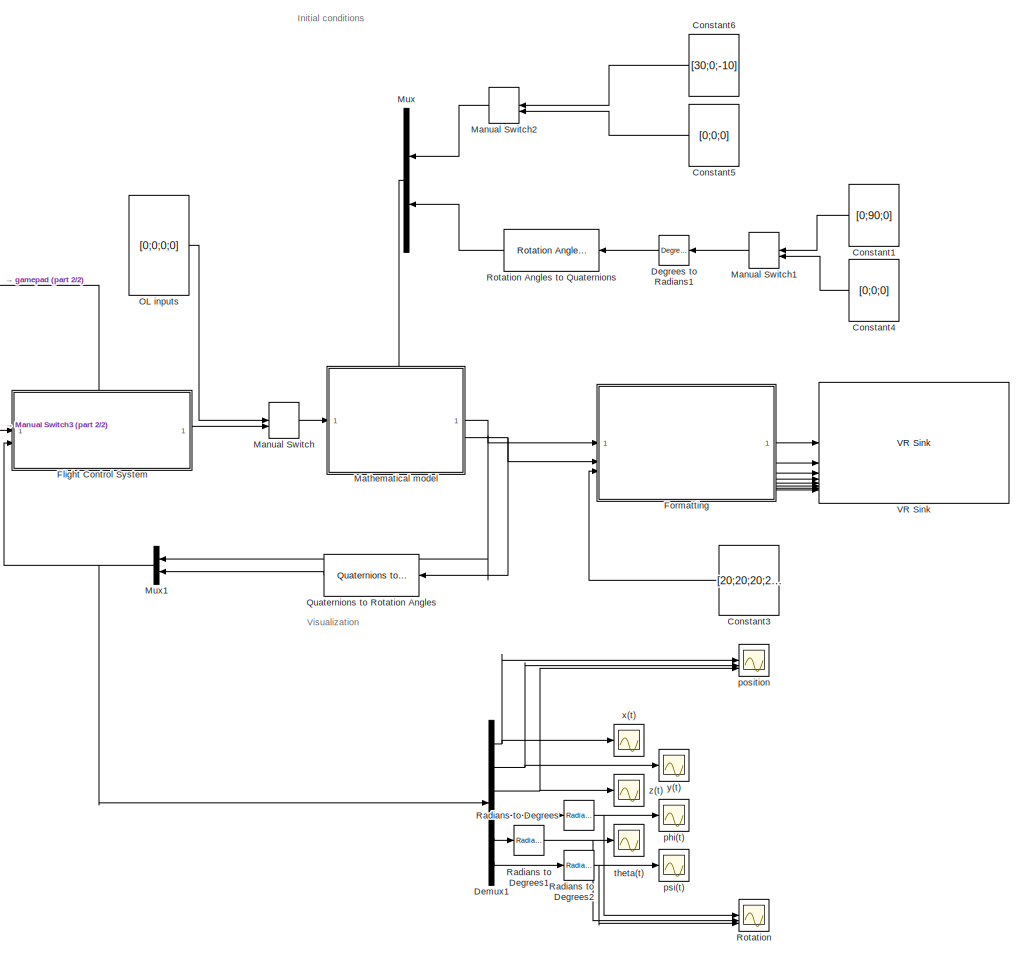
[diagram: root canvas - part 1/2, middle right region]
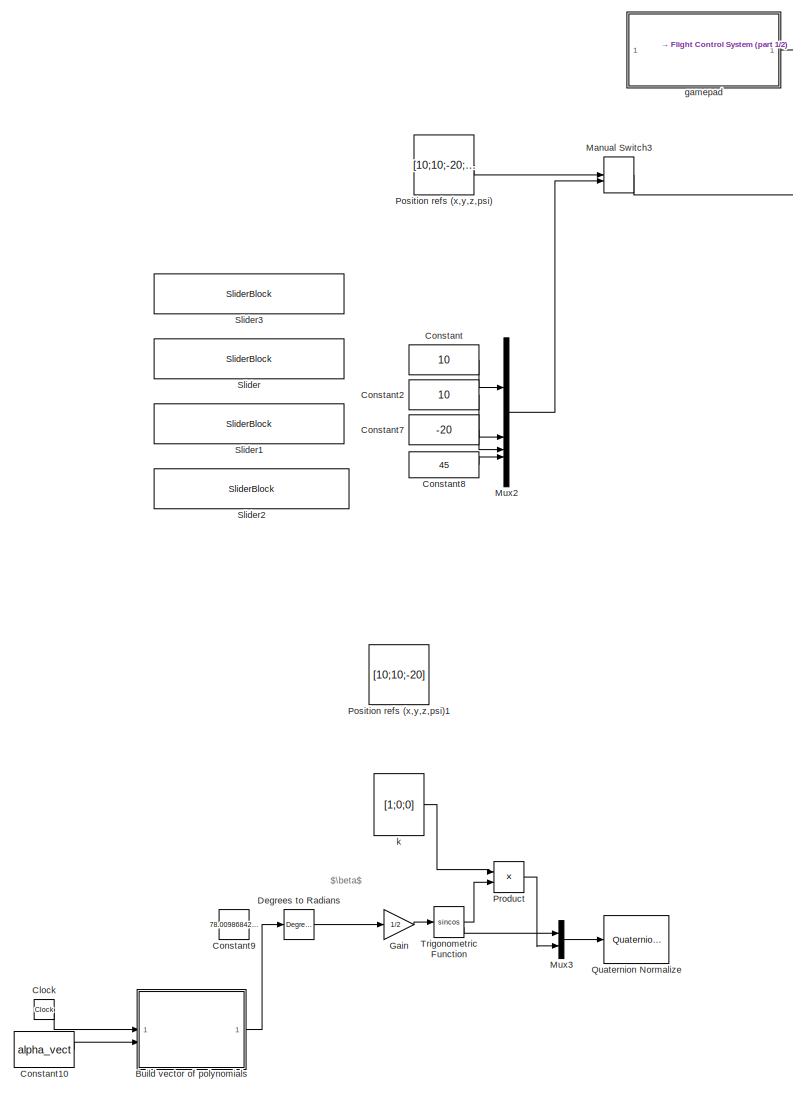
[diagram: root canvas - part 2/2, left side, full height]
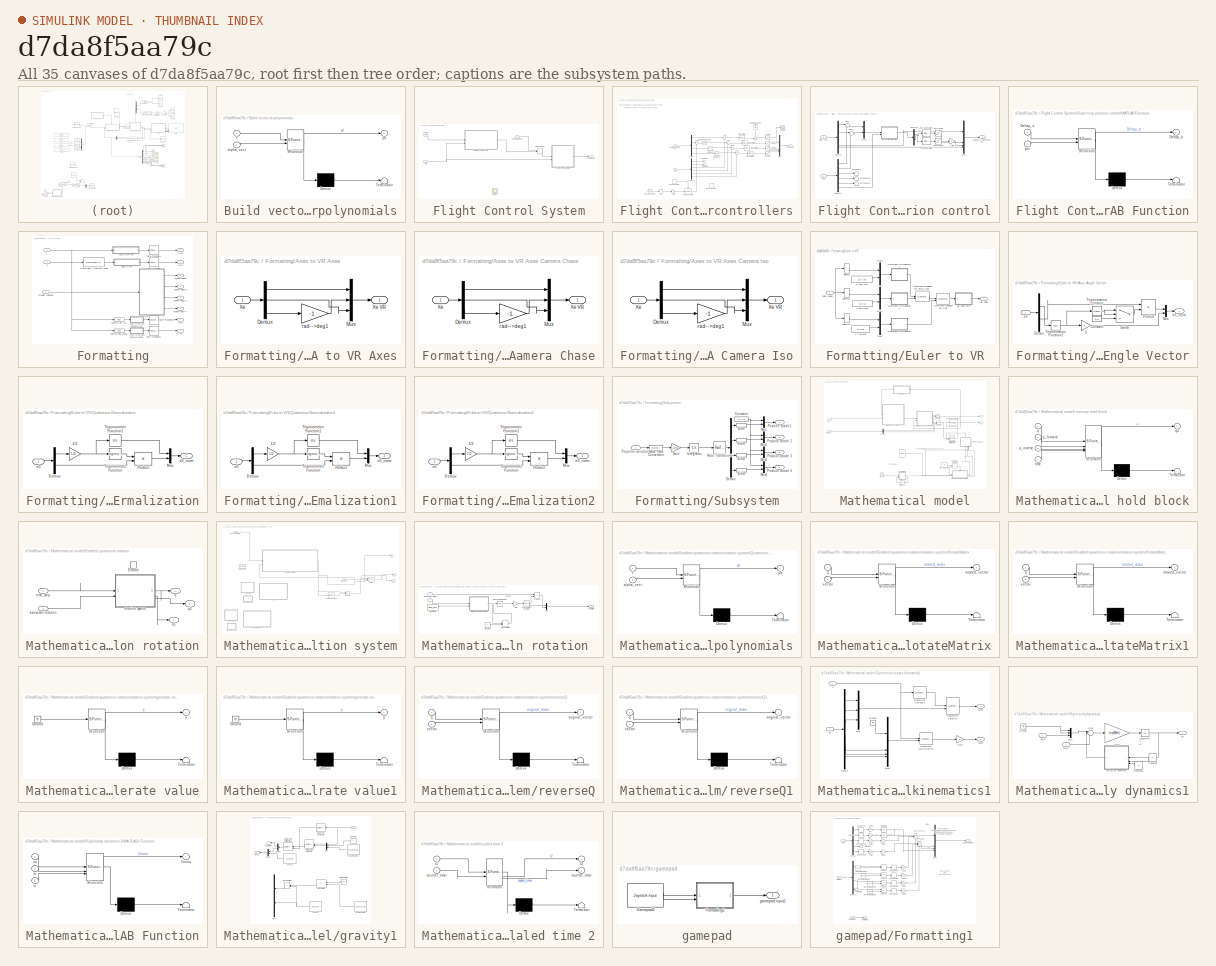
[diagram: thumbnail index - all 35 canvases of the model, root first then tree order]
MODEL slx_d7da8f5aa79c
KIND model
CONFIG AbsTol = auto
CONFIG EnableMultiTasking = on
CONFIG FixedStep = 0.005
CONFIG MaxStep = auto
CONFIG MinStep = auto
CONFIG RelTol = 1e-3
CONFIG SampleTimeConstraint = Unconstrained
CONFIG SolverName = ode3
CONFIG StartTime = 0
CONFIG StopTime = inf
BLOCK [SubSystem] Build vector of polynomials
  Commented = on
  ErrorFcn = Stateflow.Translate.translate
  PermitHierarchicalResolution = ExplicitOnly
  SFBlockType = MATLAB Function
  TreatAsAtomicUnit = on
BLOCK [Demux] Build vector of polynomials/ Demux 
  Outputs = 1
BLOCK [S-Function] Build vector of polynomials/ SFunction 
  EnableBusSupport = on
  FunctionName = sf_sfun
  PortCounts = [2 2]
  SFcnIsStateOwnerBlock = off
  SFunctionDeploymentMode = off
  Tag = Stateflow S-Function 4
BLOCK [Terminator] Build vector of polynomials/ Terminator 
BLOCK [Inport] Build vector of polynomials/alpha_vect
  Port = 2
BLOCK [Inport] Build vector of polynomials/t
BLOCK [Outport] Build vector of polynomials/yd
BLOCK [Clock] Clock
  Commented = on
BLOCK [Constant] Constant
  Value = 10
BLOCK [Constant] Constant1
  NameLocation = top
  Value = [0;90;0]
  VectorParams1D = off
BLOCK [Constant] Constant10
  Commented = on
  Value = alpha_vect
  VectorParams1D = off
BLOCK [Constant] Constant2
  Value = 10
BLOCK [Constant] Constant3
  Value = [20;20;20;20]
  VectorParams1D = off
BLOCK [Constant] Constant4
  NameLocation = top
  Value = [0;0;0]
  VectorParams1D = off
BLOCK [Constant] Constant5
  Value = [0;0;0]
  VectorParams1D = off
BLOCK [Constant] Constant6
  Value = [30;0;-10]
  VectorParams1D = off
BLOCK [Constant] Constant7
  Value = -20
BLOCK [Constant] Constant8
  Value = 45
BLOCK [Constant] Constant9
  Commented = on
  Value = 78.00986842105263
BLOCK [Reference] Degrees to Radians  REF=simulink_extras/Transformations/Degrees to
Radians
  Commented = on
  SourceBlock = simulink_extras/Transformations/Degrees to\nRadians
  SourceType = DegreesToRadians
BLOCK [Reference] Degrees to Radians1  REF=simulink_extras/Transformations/Degrees to
Radians
  NameLocation = top
  SourceBlock = simulink_extras/Transformations/Degrees to\nRadians
  SourceType = DegreesToRadians
BLOCK [Demux] Demux1
  Outputs = 6
BLOCK [SubSystem] Flight Control System
  PortSchema = {"entries":[{"content":{"sides":[{"content":{"connectorIds":["In1","In2"]},"type":"ConnectorPlacement.EquallySpacedRectSide","uuid":"8ffec179-99fb-4b4c-a09d-a73fa0154dea"},{"content":{"connectorIds":["Out1"],"side":"RIGHT"},"type":"ConnectorPlacement.EquallySpacedRectSide","uuid":"b9ff487d-1da1-449a-81c9-f1838b0d3727"},{"content":{"connectorIds":["In3"],"side":"TOP"},"type":"ConnectorPlacement.Equ...<+251ch>
BLOCK [Outport] Flight Control System/Fz,mx,my,mz
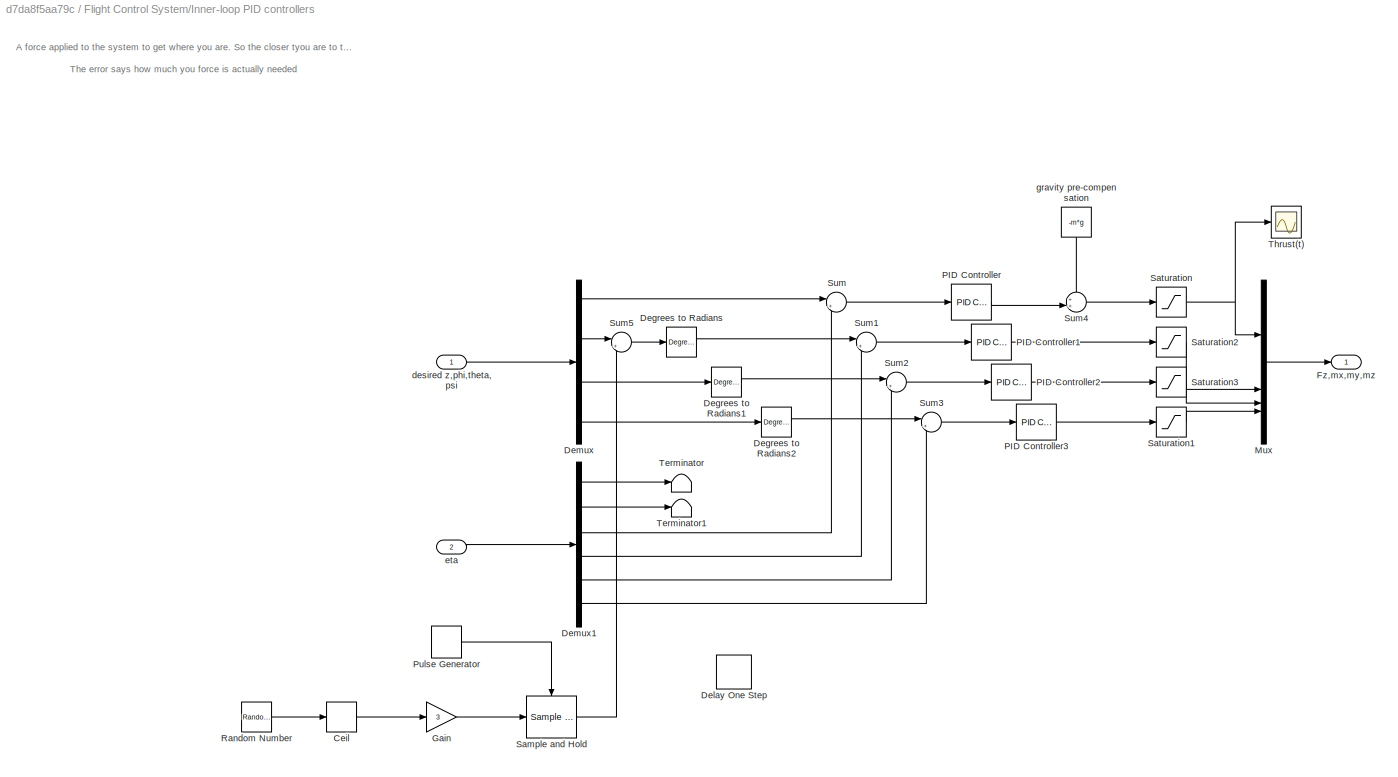
BLOCK [SubSystem] Flight Control System/Inner-loop PID controllers
BLOCK [Rounding] Flight Control System/Inner-loop PID controllers/Ceil
  Commented = on
  Operator = ceil
BLOCK [Reference] Flight Control System/Inner-loop PID controllers/Degrees to Radians  REF=simulink_extras/Transformations/Degrees to
Radians
  SourceBlock = simulink_extras/Transformations/Degrees to\nRadians
  SourceType = DegreesToRadians
BLOCK [Reference] Flight Control System/Inner-loop PID controllers/Degrees to Radians1  REF=simulink_extras/Transformations/Degrees to
Radians
  SourceBlock = simulink_extras/Transformations/Degrees to\nRadians
  SourceType = DegreesToRadians
BLOCK [Reference] Flight Control System/Inner-loop PID controllers/Degrees to Radians2  REF=simulink_extras/Transformations/Degrees to
Radians
  SourceBlock = simulink_extras/Transformations/Degrees to\nRadians
  SourceType = DegreesToRadians
BLOCK [Delay] Flight Control System/Inner-loop PID controllers/Delay One Step
  DelayLength = 1
  InputPortMap = u0
BLOCK [Demux] Flight Control System/Inner-loop PID controllers/Demux
BLOCK [Demux] Flight Control System/Inner-loop PID controllers/Demux1
  Outputs = 6
BLOCK [Outport] Flight Control System/Inner-loop PID controllers/Fz,mx,my,mz
BLOCK [Gain] Flight Control System/Inner-loop PID controllers/Gain
  Commented = on
  Gain = 3
BLOCK [Mux] Flight Control System/Inner-loop PID controllers/Mux
  DisplayOption = bar
BLOCK [Reference] Flight Control System/Inner-loop PID controllers/PID Controller  REF=slpidlib/PID Controller
  LibrarySourceBlock = simulink/Continuous/PID Controller
  SourceBlock = slpidlib/PID Controller
  SourceType = PID 1dof
BLOCK [Reference] Flight Control System/Inner-loop PID controllers/PID Controller1  REF=slpidlib/PID Controller
  LibrarySourceBlock = simulink/Continuous/PID Controller
  SourceBlock = slpidlib/PID Controller
  SourceType = PID 1dof
BLOCK [Reference] Flight Control System/Inner-loop PID controllers/PID Controller2  REF=slpidlib/PID Controller
  LibrarySourceBlock = simulink/Continuous/PID Controller
  SourceBlock = slpidlib/PID Controller
  SourceType = PID 1dof
BLOCK [Reference] Flight Control System/Inner-loop PID controllers/PID Controller3  REF=slpidlib/PID Controller
  LibrarySourceBlock = simulink/Continuous/PID Controller
  SourceBlock = slpidlib/PID Controller
  SourceType = PID 1dof
BLOCK [DiscretePulseGenerator] Flight Control System/Inner-loop PID controllers/Pulse Generator
  Commented = on
  Period = 10
  PulseType = Time based
  PulseWidth = 5
BLOCK [RandomNumber] Flight Control System/Inner-loop PID controllers/Random Number
  Commented = on
  Variance = 10
BLOCK [Reference] Flight Control System/Inner-loop PID controllers/Sample and Hold  REF=dspsigops/Sample
and Hold
  Commented = on
  LibrarySourceBlock = dsphdlsupportsigops/Sample\nand Hold
  SourceBlock = dspsigops/Sample\nand Hold
  SourceType = Sample and Hold
BLOCK [Saturate] Flight Control System/Inner-loop PID controllers/Saturation
  LowerLimit = -100
  UpperLimit = 100
BLOCK [Saturate] Flight Control System/Inner-loop PID controllers/Saturation1
  LowerLimit = -100
  UpperLimit = 100
BLOCK [Saturate] Flight Control System/Inner-loop PID controllers/Saturation2
  LowerLimit = -100
  UpperLimit = 100
BLOCK [Saturate] Flight Control System/Inner-loop PID controllers/Saturation3
  LowerLimit = -100
  UpperLimit = 100
BLOCK [Sum] Flight Control System/Inner-loop PID controllers/Sum
  Inputs = |+-
BLOCK [Sum] Flight Control System/Inner-loop PID controllers/Sum1
  Inputs = |+-
BLOCK [Sum] Flight Control System/Inner-loop PID controllers/Sum2
  Inputs = |+-
BLOCK [Sum] Flight Control System/Inner-loop PID controllers/Sum3
  Inputs = |+-
BLOCK [Sum] Flight Control System/Inner-loop PID controllers/Sum4
  Inputs = ++|
BLOCK [Sum] Flight Control System/Inner-loop PID controllers/Sum5
  Inputs = |++
BLOCK [Terminator] Flight Control System/Inner-loop PID controllers/Terminator
BLOCK [Terminator] Flight Control System/Inner-loop PID controllers/Terminator1
BLOCK [Scope] Flight Control System/Inner-loop PID controllers/Thrust(t)
  Floating = off
  NumInputPorts = 1
  ScopeSpecificationString = Simulink.scopes.TimeScopeBlockCfg('CurrentConfiguration', extmgr.ConfigurationSet(extmgr.Configuration('Core','General UI',true),extmgr.Configuration('Core','Source UI',true),extmgr.Configuration('Sources','WiredSimulink',true,'DataLoggingVariableName','ScopeData6'),extmgr.Configuration('Visuals','Time Domain',true,'SerializedDisplays',{struct('MinYLimReal','-112.66583','MaxYLimReal','13.99248','Y...<+1456ch>
BLOCK [Inport] Flight Control System/Inner-loop PID controllers/desired z,phi,theta,psi
BLOCK [Inport] Flight Control System/Inner-loop PID controllers/eta
  Port = 2
BLOCK [Constant] Flight Control System/Inner-loop PID controllers/gravity pre-compensation
  NameLocation = left
  Value = -m*g
BLOCK [ManualSwitch] Flight Control System/Manual Switch
  CurrentSetting = 0
BLOCK [SubSystem] Flight Control System/Outer loop position control
BLOCK [Demux] Flight Control System/Outer loop position control/Demux
BLOCK [Demux] Flight Control System/Outer loop position control/Demux1
  Outputs = 6
BLOCK [Demux] Flight Control System/Outer loop position control/Demux2
  Outputs = 2
BLOCK [Gain] Flight Control System/Outer loop position control/Gain
  Gain = -1
BLOCK [SubSystem] Flight Control System/Outer loop position control/MATLAB Function
  ErrorFcn = Stateflow.Translate.translate
  PermitHierarchicalResolution = ExplicitOnly
  SFBlockType = MATLAB Function
  TreatAsAtomicUnit = on
BLOCK [Demux] Flight Control System/Outer loop position control/MATLAB Function/ Demux 
  Outputs = 1
BLOCK [S-Function] Flight Control System/Outer loop position control/MATLAB Function/ SFunction 
  EnableBusSupport = on
  FunctionName = sf_sfun
  PortCounts = [2 2]
  SFcnIsStateOwnerBlock = off
  SFunctionDeploymentMode = off
  Tag = Stateflow S-Function 1
BLOCK [Terminator] Flight Control System/Outer loop position control/MATLAB Function/ Terminator 
BLOCK [Outport] Flight Control System/Outer loop position control/MATLAB Function/Deltap_b
BLOCK [Inport] Flight Control System/Outer loop position control/MATLAB Function/Deltap_e
BLOCK [Inport] Flight Control System/Outer loop position control/MATLAB Function/psi
  Port = 2
BLOCK [Mux] Flight Control System/Outer loop position control/Mux
  DisplayOption = bar
BLOCK [Mux] Flight Control System/Outer loop position control/Mux1
  DisplayOption = bar
  Inputs = 2
BLOCK [Reference] Flight Control System/Outer loop position control/PID Controller  REF=slpidlib/PID Controller
  LibrarySourceBlock = simulink/Continuous/PID Controller
  SourceBlock = slpidlib/PID Controller
  SourceType = PID 1dof
BLOCK [Reference] Flight Control System/Outer loop position control/PID Controller2  REF=slpidlib/PID Controller
  LibrarySourceBlock = simulink/Continuous/PID Controller
  SourceBlock = slpidlib/PID Controller
  SourceType = PID 1dof
BLOCK [Inport] Flight Control System/Outer loop position control/Pos. refs
BLOCK [Saturate] Flight Control System/Outer loop position control/Saturation
  LowerLimit = -5
  UpperLimit = 5
BLOCK [Saturate] Flight Control System/Outer loop position control/Saturation1
  LowerLimit = -5
  UpperLimit = 5
BLOCK [Sum] Flight Control System/Outer loop position control/Sum
  Inputs = |+-
BLOCK [Sum] Flight Control System/Outer loop position control/Sum1
  Inputs = |+-
BLOCK [Terminator] Flight Control System/Outer loop position control/Terminator
BLOCK [Terminator] Flight Control System/Outer loop position control/Terminator1
BLOCK [Terminator] Flight Control System/Outer loop position control/Terminator2
BLOCK [Outport] Flight Control System/Outer loop position control/desired z,phi,theta,psi
BLOCK [Inport] Flight Control System/Outer loop position control/eta
  Port = 2
BLOCK [Inport] Flight Control System/Pos. refs
BLOCK [Inport] Flight Control System/eta
  Port = 2
BLOCK [Inport] Flight Control System/gamepad input
  Port = 3
BLOCK [Scope] Flight Control System/m_y(t)
  Floating = off
  NumInputPorts = 1
  ScopeSpecificationString = Simulink.scopes.TimeScopeBlockCfg('CurrentConfiguration', extmgr.ConfigurationSet(extmgr.Configuration('Core','General UI',true),extmgr.Configuration('Core','Source UI',true),extmgr.Configuration('Sources','WiredSimulink',true,'DataLoggingVariableName','ScopeData3'),extmgr.Configuration('Visuals','Time Domain',true,'SerializedDisplays',{struct('MinYLimReal','-1.00000','MaxYLimReal','1.00000','YLab...<+1433ch>
BLOCK [SubSystem] Formatting
BLOCK [SubSystem] Formatting/Axes to VR Axes
BLOCK [SubSystem] Formatting/Axes to VR Axes Camera Chase
BLOCK [Demux] Formatting/Axes to VR Axes Camera Chase/Demux
  DisplayOption = none
  Outputs = 3
BLOCK [Mux] Formatting/Axes to VR Axes Camera Chase/Mux
  DisplayOption = bar
  Inputs = 3
BLOCK [Inport] Formatting/Axes to VR Axes Camera Chase/Xe
BLOCK [Outport] Formatting/Axes to VR Axes Camera Chase/Xe VR
  VectorParamsAs1DForOutWhenUnconnected = off
BLOCK [Gain] Formatting/Axes to VR Axes Camera Chase/rad-->deg1
  Gain = -1
  NameLocation = top
  OutDataTypeStr = Inherit: Same as input
  ParamDataTypeStr = Inherit: Same as input
  SaturateOnIntegerOverflow = on
BLOCK [SubSystem] Formatting/Axes to VR Axes Camera Iso
BLOCK [Demux] Formatting/Axes to VR Axes Camera Iso/Demux
  DisplayOption = none
  Outputs = 3
BLOCK [Mux] Formatting/Axes to VR Axes Camera Iso/Mux
  DisplayOption = bar
  Inputs = 3
BLOCK [Inport] Formatting/Axes to VR Axes Camera Iso/Xe
BLOCK [Outport] Formatting/Axes to VR Axes Camera Iso/Xe VR
  VectorParamsAs1DForOutWhenUnconnected = off
BLOCK [Gain] Formatting/Axes to VR Axes Camera Iso/rad-->deg1
  Gain = -1
  NameLocation = top
  OutDataTypeStr = Inherit: Same as input
  ParamDataTypeStr = Inherit: Same as input
  SaturateOnIntegerOverflow = on
BLOCK [Demux] Formatting/Axes to VR Axes/Demux
  DisplayOption = none
  Outputs = 3
BLOCK [Mux] Formatting/Axes to VR Axes/Mux
  DisplayOption = bar
  Inputs = 3
BLOCK [Inport] Formatting/Axes to VR Axes/Xe
BLOCK [Outport] Formatting/Axes to VR Axes/Xe VR
  VectorParamsAs1DForOutWhenUnconnected = off
BLOCK [Gain] Formatting/Axes to VR Axes/rad-->deg1
  Gain = -1
  NameLocation = top
  OutDataTypeStr = Inherit: Same as input
  ParamDataTypeStr = Inherit: Same as input
  SaturateOnIntegerOverflow = on
BLOCK [Bias] Formatting/Camera bias Chase
  Bias = [-4 0 -.9558]'
  SaturateOnIntegerOverflow = off
BLOCK [Bias] Formatting/Camera bias Iso
  Bias = [0.9009 .99 -.6247]'
  SaturateOnIntegerOverflow = off
BLOCK [SubSystem] Formatting/Euler to VR
BLOCK [Outport] Formatting/Euler to VR/Axis Angle
  VectorParamsAs1DForOutWhenUnconnected = off
BLOCK [SubSystem] Formatting/Euler to VR/Axis Angle Vector
BLOCK [Gain] Formatting/Euler to VR/Axis Angle Vector/2
  Gain = 2
  OutDataTypeStr = Inherit: Same as input
  ParamDataTypeStr = Inherit: Same as input
  SaturateOnIntegerOverflow = on
BLOCK [Constant] Formatting/Euler to VR/Axis Angle Vector/Constant
  Value = 1e-6
BLOCK [Demux] Formatting/Euler to VR/Axis Angle Vector/Demux
  DisplayOption = none
  Outputs = [1 3 ]
BLOCK [Mux] Formatting/Euler to VR/Axis Angle Vector/Mux
  DisplayOption = bar
  Inputs = 2
BLOCK [Product] Formatting/Euler to VR/Axis Angle Vector/Product
  InputSameDT = on
  Inputs = */
  OutDataTypeStr = Inherit: Same as first input
  SaturateOnIntegerOverflow = on
BLOCK [Switch] Formatting/Euler to VR/Axis Angle Vector/Switch
  Criteria = u2 ~= 0
  InputSameDT = off
  SaturateOnIntegerOverflow = off
BLOCK [Trigonometry] Formatting/Euler to VR/Axis Angle Vector/Trigonometric Function
BLOCK [Trigonometry] Formatting/Euler to VR/Axis Angle Vector/Trigonometric Function2
  Operator = acos
BLOCK [Inport] Formatting/Euler to VR/Axis Angle Vector/e0
BLOCK [Outport] Formatting/Euler to VR/Axis Angle Vector/e0_norm
  VectorParamsAs1DForOutWhenUnconnected = off
BLOCK [Inport] Formatting/Euler to VR/Euler Angles
BLOCK [Mux] Formatting/Euler to VR/Mux
  DisplayOption = bar
  Inputs = 2
BLOCK [Mux] Formatting/Euler to VR/Mux1
  DisplayOption = bar
  Inputs = 2
BLOCK [Mux] Formatting/Euler to VR/Mux2
  DisplayOption = bar
  Inputs = 2
BLOCK [Reference] Formatting/Euler to VR/Quaternion Multiplication (Pitch & Yaw)  REF=aerolibutil/Quaternion
Multiplication
  SourceBlock = aerolibutil/Quaternion\nMultiplication
  SourceType = Quaternion Multiplication
BLOCK [Reference] Formatting/Euler to VR/Quaternion Multiplication (Roll)  REF=aerolibutil/Quaternion
Multiplication
  SourceBlock = aerolibutil/Quaternion\nMultiplication
  SourceType = Quaternion Multiplication
BLOCK [SubSystem] Formatting/Euler to VR/Quaternion Normalization
BLOCK [Gain] Formatting/Euler to VR/Quaternion Normalization/1//2
  Gain = 1/2
  OutDataTypeStr = Inherit: Same as input
  ParamDataTypeStr = Inherit: Same as input
  SaturateOnIntegerOverflow = on
BLOCK [Demux] Formatting/Euler to VR/Quaternion Normalization/Demux
  DisplayOption = none
  Outputs = [1 3]
BLOCK [Mux] Formatting/Euler to VR/Quaternion Normalization/Mux
  DisplayOption = bar
  Inputs = 2
BLOCK [Product] Formatting/Euler to VR/Quaternion Normalization/Product
  InputSameDT = on
  OutDataTypeStr = Inherit: Same as first input
  SaturateOnIntegerOverflow = on
BLOCK [Trigonometry] Formatting/Euler to VR/Quaternion Normalization/Trigonometric Function
BLOCK [Trigonometry] Formatting/Euler to VR/Quaternion Normalization/Trigonometric Function1
  Operator = cos
BLOCK [Inport] Formatting/Euler to VR/Quaternion Normalization/e0
BLOCK [Outport] Formatting/Euler to VR/Quaternion Normalization/e0_norm
  VectorParamsAs1DForOutWhenUnconnected = off
BLOCK [SubSystem] Formatting/Euler to VR/Quaternion Normalization1
BLOCK [Gain] Formatting/Euler to VR/Quaternion Normalization1/1//2
  Gain = 1/2
  OutDataTypeStr = Inherit: Same as input
  ParamDataTypeStr = Inherit: Same as input
  SaturateOnIntegerOverflow = on
BLOCK [Demux] Formatting/Euler to VR/Quaternion Normalization1/Demux
  DisplayOption = none
  Outputs = [1 3]
BLOCK [Mux] Formatting/Euler to VR/Quaternion Normalization1/Mux
  DisplayOption = bar
  Inputs = 2
BLOCK [Product] Formatting/Euler to VR/Quaternion Normalization1/Product
  InputSameDT = on
  OutDataTypeStr = Inherit: Same as first input
  SaturateOnIntegerOverflow = on
BLOCK [Trigonometry] Formatting/Euler to VR/Quaternion Normalization1/Trigonometric Function
BLOCK [Trigonometry] Formatting/Euler to VR/Quaternion Normalization1/Trigonometric Function1
  Operator = cos
BLOCK [Inport] Formatting/Euler to VR/Quaternion Normalization1/e0
BLOCK [Outport] Formatting/Euler to VR/Quaternion Normalization1/e0_norm
  VectorParamsAs1DForOutWhenUnconnected = off
BLOCK [SubSystem] Formatting/Euler to VR/Quaternion Normalization2
BLOCK [Gain] Formatting/Euler to VR/Quaternion Normalization2/1//2
  Gain = 1/2
  OutDataTypeStr = Inherit: Same as input
  ParamDataTypeStr = Inherit: Same as input
  SaturateOnIntegerOverflow = on
BLOCK [Demux] Formatting/Euler to VR/Quaternion Normalization2/Demux
  DisplayOption = none
  Outputs = [1 3]
BLOCK [Mux] Formatting/Euler to VR/Quaternion Normalization2/Mux
  DisplayOption = bar
  Inputs = 2
BLOCK [Product] Formatting/Euler to VR/Quaternion Normalization2/Product
  InputSameDT = on
  OutDataTypeStr = Inherit: Same as first input
  SaturateOnIntegerOverflow = on
BLOCK [Trigonometry] Formatting/Euler to VR/Quaternion Normalization2/Trigonometric Function
BLOCK [Trigonometry] Formatting/Euler to VR/Quaternion Normalization2/Trigonometric Function1
  Operator = cos
BLOCK [Inport] Formatting/Euler to VR/Quaternion Normalization2/e0
BLOCK [Outport] Formatting/Euler to VR/Quaternion Normalization2/e0_norm
  VectorParamsAs1DForOutWhenUnconnected = off
BLOCK [Selector] Formatting/Euler to VR/Selector
  IndexOptions = Index vector (dialog)
  Indices = [3]
  InputPortWidth = 3
  OutputSizes = 1
BLOCK [Selector] Formatting/Euler to VR/Selector1
  IndexOptions = Index vector (dialog)
  Indices = [2]
  InputPortWidth = 3
  OutputSizes = 1
BLOCK [Selector] Formatting/Euler to VR/Selector2
  IndexOptions = Index vector (dialog)
  Indices = [1]
  InputPortWidth = 3
  OutputSizes = 1
BLOCK [Constant] Formatting/Euler to VR/Vr Pitch Axes
  NameLocation = top
  Value = [0 0 1]
BLOCK [Constant] Formatting/Euler to VR/Vr Roll Axes
  NameLocation = top
  Value = [1 0 0]
BLOCK [Constant] Formatting/Euler to VR/Vr Yaw Axes
  Value = [0 -1 0]
BLOCK [Outport] Formatting/Out1
BLOCK [Outport] Formatting/Out2
  Port = 2
BLOCK [Outport] Formatting/Out7
  Port = 7
BLOCK [Outport] Formatting/Out8
  Port = 8
BLOCK [Outport] Formatting/Position Blade 2
  Port = 4
BLOCK [Outport] Formatting/Position Blade 3
  Port = 5
BLOCK [Outport] Formatting/Position Blade 4
  Port = 6
BLOCK [Outport] Formatting/Position Blade1
  Port = 3
BLOCK [Inport] Formatting/Propeller velocities
  Port = 3
BLOCK [Reference] Formatting/Quaternions to Rotation Angles  REF=sharedtransform/Quaternions to Rotation Angles
  AttributesFormatString = Rotation Order: %<rotationOrder>
  LibrarySourceBlock = aerolibtransform2/Quaternions to Rotation Angles
  SourceBlock = sharedtransform/Quaternions to Rotation Angles
  SourceType = Quat2Ang
BLOCK [RateTransition] Formatting/Rate Transition
BLOCK [RateTransition] Formatting/Rate Transition1
BLOCK [RateTransition] Formatting/Rate Transition2
BLOCK [RateTransition] Formatting/Rate Transition3
BLOCK [SubSystem] Formatting/Subsystem
BLOCK [Bias] Formatting/Subsystem/Bias
  Bias = .1
  SaturateOnIntegerOverflow = off
BLOCK [Bias] Formatting/Subsystem/Bias1
  Bias = -.3
  SaturateOnIntegerOverflow = off
BLOCK [Bias] Formatting/Subsystem/Bias2
  Bias = .5
  SaturateOnIntegerOverflow = off
BLOCK [Bias] Formatting/Subsystem/Bias3
  Bias = .7
  SaturateOnIntegerOverflow = off
BLOCK [Constant] Formatting/Subsystem/Constant
  Value = [0 1 0]
BLOCK [DataTypeConversion] Formatting/Subsystem/Data Type Conversion
  OutDataTypeStr = double
  RndMeth = Floor
  SaturateOnIntegerOverflow = off
BLOCK [Demux] Formatting/Subsystem/Demux
BLOCK [Gain] Formatting/Subsystem/Gain
  Gain = 1.38408
BLOCK [Integrator] Formatting/Subsystem/Integrator
  InitialCondition = [.1 ; .2 ;-.3 ;-.4]
  WrapState = on
  WrappedStateLowerValue = -2*pi
  WrappedStateUpperValue = 2*pi
BLOCK [Mux] Formatting/Subsystem/Mux
  DisplayOption = bar
  Inputs = 2
BLOCK [Mux] Formatting/Subsystem/Mux1
  DisplayOption = bar
  Inputs = 2
BLOCK [Mux] Formatting/Subsystem/Mux2
  DisplayOption = bar
  Inputs = 2
BLOCK [Mux] Formatting/Subsystem/Mux3
  DisplayOption = bar
  Inputs = 2
BLOCK [Outport] Formatting/Subsystem/Position Blade 2
  Port = 2
  VectorParamsAs1DForOutWhenUnconnected = off
BLOCK [Outport] Formatting/Subsystem/Position Blade 3
  Port = 3
  VectorParamsAs1DForOutWhenUnconnected = off
BLOCK [Outport] Formatting/Subsystem/Position Blade 4
  Port = 4
  VectorParamsAs1DForOutWhenUnconnected = off
BLOCK [Outport] Formatting/Subsystem/Position Blade1
  VectorParamsAs1DForOutWhenUnconnected = off
BLOCK [Inport] Formatting/Subsystem/Propeller velocities
BLOCK [RateTransition] Formatting/Subsystem/Rate Transition2
BLOCK [Inport] Formatting/p
BLOCK [Inport] Formatting/q
  Port = 2
BLOCK [Gain] Gain
  Commented = on
  Gain = 1/2
BLOCK [ManualSwitch] Manual Switch
  CurrentSetting = 0
BLOCK [ManualSwitch] Manual Switch1
  CurrentSetting = 0
  NameLocation = top
BLOCK [ManualSwitch] Manual Switch2
  CurrentSetting = 0
BLOCK [ManualSwitch] Manual Switch3
  CurrentSetting = 0
BLOCK [SubSystem] Mathematical model
  PortSchema = {"entries":[{"content":{"sides":[{"content":{"connectorIds":["In1"]},"type":"ConnectorPlacement.EquallySpacedRectSide","uuid":"ec20a421-1623-4e70-8139-b8a1059377b4"},{"content":{"connectorIds":["Out1","Out2"],"side":"RIGHT"},"type":"ConnectorPlacement.EquallySpacedRectSide","uuid":"36d93457-e9eb-484d-a9d5-c13c594c981e"},{"content":{"connectorIds":["In2"],"side":"TOP"},"type":"ConnectorPlacement.Eq...<+252ch>
BLOCK [SubSystem] Mathematical model/ memory hold block
  ErrorFcn = Stateflow.Translate.translate
  NameLocation = right
  PermitHierarchicalResolution = ExplicitOnly
  SFBlockType = MATLAB Function
  TreatAsAtomicUnit = on
BLOCK [Demux] Mathematical model/ memory hold block/ Demux 
  Outputs = 1
BLOCK [S-Function] Mathematical model/ memory hold block/ SFunction 
  EnableBusSupport = on
  FunctionName = sf_sfun
  PortCounts = [4 2]
  SFcnIsStateOwnerBlock = off
  SFunctionDeploymentMode = off
  Tag = Stateflow S-Function 2
BLOCK [Terminator] Mathematical model/ memory hold block/ Terminator 
BLOCK [Inport] Mathematical model/ memory hold block/q
BLOCK [Outport] Mathematical model/ memory hold block/q2
BLOCK [Inport] Mathematical model/ memory hold block/q_forward
  Port = 2
BLOCK [Inport] Mathematical model/ memory hold block/q_inverse
  Port = 3
BLOCK [Inport] Mathematical model/ memory hold block/time
  Port = 4
BLOCK [Clock] Mathematical model/Clock3
BLOCK [Demux] Mathematical model/Demux1
  Outputs = [3,4]
BLOCK [SubSystem] Mathematical model/Enabled quartonion rotation
  TreatAsAtomicUnit = on
BLOCK [EnablePort] Mathematical model/Enabled quartonion rotation/Enable
BLOCK [Inport] Mathematical model/Enabled quartonion rotation/axis vector rotation
  Port = 2
BLOCK [Outport] Mathematical model/Enabled quartonion rotation/q
BLOCK [Outport] Mathematical model/Enabled quartonion rotation/q1
  Port = 2
BLOCK [Outport] Mathematical model/Enabled quartonion rotation/q2
  Port = 3
BLOCK [SubSystem] Mathematical model/Enabled quartonion rotation/rotation system
BLOCK [Reference] Mathematical model/Enabled quartonion rotation/rotation system/Normalization  REF=dspmathops/Normalization
  Commented = on
  SourceBlock = dspmathops/Normalization
  SourceType = Normalization
BLOCK [Product] Mathematical model/Enabled quartonion rotation/rotation system/Product1
BLOCK [Reference] Mathematical model/Enabled quartonion rotation/rotation system/Quaternion Inverse  REF=aerolibutil/Quaternion
Inverse
  SourceBlock = aerolibutil/Quaternion\nInverse
  SourceType = Quaternion Inverse
BLOCK [SubSystem] Mathematical model/Enabled quartonion rotation/rotation system/Quaternion rotation 
BLOCK [SubSystem] Mathematical model/Enabled quartonion rotation/rotation system/Quaternion rotation /Build vector of polynomials
  ErrorFcn = Stateflow.Translate.translate
  PermitHierarchicalResolution = ExplicitOnly
  SFBlockType = MATLAB Function
  TreatAsAtomicUnit = on
BLOCK [Demux] Mathematical model/Enabled quartonion rotation/rotation system/Quaternion rotation /Build vector of polynomials/ Demux 
  Outputs = 1
BLOCK [S-Function] Mathematical model/Enabled quartonion rotation/rotation system/Quaternion rotation /Build vector of polynomials/ SFunction 
  EnableBusSupport = on
  FunctionName = sf_sfun
  PortCounts = [2 2]
  SFcnIsStateOwnerBlock = off
  SFunctionDeploymentMode = off
  Tag = Stateflow S-Function 5
BLOCK [Terminator] Mathematical model/Enabled quartonion rotation/rotation system/Quaternion rotation /Build vector of polynomials/ Terminator 
BLOCK [Inport] Mathematical model/Enabled quartonion rotation/rotation system/Quaternion rotation /Build vector of polynomials/alpha_vect
  Port = 2
BLOCK [Inport] Mathematical model/Enabled quartonion rotation/rotation system/Quaternion rotation /Build vector of polynomials/t
BLOCK [Outport] Mathematical model/Enabled quartonion rotation/rotation system/Quaternion rotation /Build vector of polynomials/yd
BLOCK [Constant] Mathematical model/Enabled quartonion rotation/rotation system/Quaternion rotation /Constant
  Value = 45
BLOCK [Constant] Mathematical model/Enabled quartonion rotation/rotation system/Quaternion rotation /Constant1
  Value = alpha_vect
  VectorParams1D = off
BLOCK [Reference] Mathematical model/Enabled quartonion rotation/rotation system/Quaternion rotation /Degrees to Radians  REF=simulink_extras/Transformations/Degrees to
Radians
  SourceBlock = simulink_extras/Transformations/Degrees to\nRadians
  SourceType = DegreesToRadians
BLOCK [Gain] Mathematical model/Enabled quartonion rotation/rotation system/Quaternion rotation /Gain
  Gain = 1/2
BLOCK [ManualSwitch] Mathematical model/Enabled quartonion rotation/rotation system/Quaternion rotation /Manual Switch
  CurrentSetting = 0
BLOCK [Mux] Mathematical model/Enabled quartonion rotation/rotation system/Quaternion rotation /Mux
  DisplayOption = bar
  Inputs = 2
BLOCK [Product] Mathematical model/Enabled quartonion rotation/rotation system/Quaternion rotation /Product
BLOCK [Trigonometry] Mathematical model/Enabled quartonion rotation/rotation system/Quaternion rotation /Trigonometric Function
  Operator = sincos
BLOCK [Inport] Mathematical model/Enabled quartonion rotation/rotation system/Quaternion rotation /axis vector rotation
BLOCK [Outport] Mathematical model/Enabled quartonion rotation/rotation system/Quaternion rotation /q rotation
BLOCK [Inport] Mathematical model/Enabled quartonion rotation/rotation system/Quaternion rotation /t
  Port = 2
BLOCK [SubSystem] Mathematical model/Enabled quartonion rotation/rotation system/RotateMatrix
  Commented = on
  ErrorFcn = Stateflow.Translate.translate
  PermitHierarchicalResolution = ExplicitOnly
  SFBlockType = MATLAB Function
  TreatAsAtomicUnit = on
BLOCK [Demux] Mathematical model/Enabled quartonion rotation/rotation system/RotateMatrix/ Demux 
  Outputs = 1
BLOCK [S-Function] Mathematical model/Enabled quartonion rotation/rotation system/RotateMatrix/ SFunction 
  EnableBusSupport = on
  FunctionName = sf_sfun
  PortCounts = [2 2]
  SFcnIsStateOwnerBlock = off
  SFunctionDeploymentMode = off
  Tag = Stateflow S-Function 3
BLOCK [Terminator] Mathematical model/Enabled quartonion rotation/rotation system/RotateMatrix/ Terminator 
BLOCK [Inport] Mathematical model/Enabled quartonion rotation/rotation system/RotateMatrix/q
BLOCK [Outport] Mathematical model/Enabled quartonion rotation/rotation system/RotateMatrix/rotated_vector
BLOCK [Inport] Mathematical model/Enabled quartonion rotation/rotation system/RotateMatrix/vector
  Port = 2
BLOCK [SubSystem] Mathematical model/Enabled quartonion rotation/rotation system/RotateMatrix1
  Commented = on
  ErrorFcn = Stateflow.Translate.translate
  PermitHierarchicalResolution = ExplicitOnly
  SFBlockType = MATLAB Function
  TreatAsAtomicUnit = on
BLOCK [Demux] Mathematical model/Enabled quartonion rotation/rotation system/RotateMatrix1/ Demux 
  Outputs = 1
BLOCK [S-Function] Mathematical model/Enabled quartonion rotation/rotation system/RotateMatrix1/ SFunction 
  EnableBusSupport = on
  FunctionName = sf_sfun
  PortCounts = [2 2]
  SFcnIsStateOwnerBlock = off
  SFunctionDeploymentMode = off
  Tag = Stateflow S-Function 16
BLOCK [Terminator] Mathematical model/Enabled quartonion rotation/rotation system/RotateMatrix1/ Terminator 
BLOCK [Inport] Mathematical model/Enabled quartonion rotation/rotation system/RotateMatrix1/q
BLOCK [Outport] Mathematical model/Enabled quartonion rotation/rotation system/RotateMatrix1/rotated_vector
BLOCK [Inport] Mathematical model/Enabled quartonion rotation/rotation system/RotateMatrix1/vector
  Port = 2
BLOCK [Switch] Mathematical model/Enabled quartonion rotation/rotation system/Switch
  Criteria = u2 > Threshold
  InputSameDT = off
  SaturateOnIntegerOverflow = off
  Threshold = 7
BLOCK [Inport] Mathematical model/Enabled quartonion rotation/rotation system/axis vector rotation
  Port = 2
BLOCK [SubSystem] Mathematical model/Enabled quartonion rotation/rotation system/generate value
  Commented = on
  ErrorFcn = Stateflow.Translate.translate
  PermitHierarchicalResolution = ExplicitOnly
  SFBlockType = MATLAB Function
  TreatAsAtomicUnit = on
BLOCK [Demux] Mathematical model/Enabled quartonion rotation/rotation system/generate value/ Demux 
  Outputs = 1
BLOCK [Ground] Mathematical model/Enabled quartonion rotation/rotation system/generate value/ Ground 
BLOCK [S-Function] Mathematical model/Enabled quartonion rotation/rotation system/generate value/ SFunction 
  EnableBusSupport = on
  FunctionName = sf_sfun
  PortCounts = [1 2]
  SFcnIsStateOwnerBlock = off
  SFunctionDeploymentMode = off
  Tag = Stateflow S-Function 8
BLOCK [Terminator] Mathematical model/Enabled quartonion rotation/rotation system/generate value/ Terminator 
BLOCK [Outport] Mathematical model/Enabled quartonion rotation/rotation system/generate value/y
BLOCK [SubSystem] Mathematical model/Enabled quartonion rotation/rotation system/generate value1
  Commented = on
  ErrorFcn = Stateflow.Translate.translate
  PermitHierarchicalResolution = ExplicitOnly
  SFBlockType = MATLAB Function
  TreatAsAtomicUnit = on
BLOCK [Demux] Mathematical model/Enabled quartonion rotation/rotation system/generate value1/ Demux 
  Outputs = 1
BLOCK [Ground] Mathematical model/Enabled quartonion rotation/rotation system/generate value1/ Ground 
BLOCK [S-Function] Mathematical model/Enabled quartonion rotation/rotation system/generate value1/ SFunction 
  EnableBusSupport = on
  FunctionName = sf_sfun
  PortCounts = [1 2]
  SFcnIsStateOwnerBlock = off
  SFunctionDeploymentMode = off
  Tag = Stateflow S-Function 17
BLOCK [Terminator] Mathematical model/Enabled quartonion rotation/rotation system/generate value1/ Terminator 
BLOCK [Outport] Mathematical model/Enabled quartonion rotation/rotation system/generate value1/y
BLOCK [Outport] Mathematical model/Enabled quartonion rotation/rotation system/q
BLOCK [Outport] Mathematical model/Enabled quartonion rotation/rotation system/q1
  Port = 2
BLOCK [Outport] Mathematical model/Enabled quartonion rotation/rotation system/q2
  Port = 3
BLOCK [SubSystem] Mathematical model/Enabled quartonion rotation/rotation system/reverseQ
  Commented = on
  ErrorFcn = Stateflow.Translate.translate
  PermitHierarchicalResolution = ExplicitOnly
  SFBlockType = MATLAB Function
  TreatAsAtomicUnit = on
BLOCK [Demux] Mathematical model/Enabled quartonion rotation/rotation system/reverseQ/ Demux 
  Outputs = 1
BLOCK [S-Function] Mathematical model/Enabled quartonion rotation/rotation system/reverseQ/ SFunction 
  EnableBusSupport = on
  FunctionName = sf_sfun
  PortCounts = [2 2]
  SFcnIsStateOwnerBlock = off
  SFunctionDeploymentMode = off
  Tag = Stateflow S-Function 9
BLOCK [Terminator] Mathematical model/Enabled quartonion rotation/rotation system/reverseQ/ Terminator 
BLOCK [Outport] Mathematical model/Enabled quartonion rotation/rotation system/reverseQ/original_vector
BLOCK [Inport] Mathematical model/Enabled quartonion rotation/rotation system/reverseQ/q
BLOCK [Inport] Mathematical model/Enabled quartonion rotation/rotation system/reverseQ/vector
  Port = 2
BLOCK [SubSystem] Mathematical model/Enabled quartonion rotation/rotation system/reverseQ1
  Commented = on
  ErrorFcn = Stateflow.Translate.translate
  PermitHierarchicalResolution = ExplicitOnly
  SFBlockType = MATLAB Function
  TreatAsAtomicUnit = on
BLOCK [Demux] Mathematical model/Enabled quartonion rotation/rotation system/reverseQ1/ Demux 
  Outputs = 1
BLOCK [S-Function] Mathematical model/Enabled quartonion rotation/rotation system/reverseQ1/ SFunction 
  EnableBusSupport = on
  FunctionName = sf_sfun
  PortCounts = [2 2]
  SFcnIsStateOwnerBlock = off
  SFunctionDeploymentMode = off
  Tag = Stateflow S-Function 18
BLOCK [Terminator] Mathematical model/Enabled quartonion rotation/rotation system/reverseQ1/ Terminator 
BLOCK [Outport] Mathematical model/Enabled quartonion rotation/rotation system/reverseQ1/original_vector
BLOCK [Inport] Mathematical model/Enabled quartonion rotation/rotation system/reverseQ1/q
BLOCK [Inport] Mathematical model/Enabled quartonion rotation/rotation system/reverseQ1/vector
  Port = 2
BLOCK [Inport] Mathematical model/Enabled quartonion rotation/rotation system/time_step
BLOCK [Inport] Mathematical model/Enabled quartonion rotation/time_step
BLOCK [Inport] Mathematical model/Init. cond.
  Port = 2
BLOCK [Integrator] Mathematical model/Integrator1
  InitialCondition = [0;0;-10]
  InitialConditionSource = external
BLOCK [Integrator] Mathematical model/Integrator3
  InitialCondition = [0;0;-10;0;pi/2;0]
  InitialConditionSource = external
BLOCK [Reference] Mathematical model/Quaternion Multiplication  REF=aerolibutil/Quaternion
Multiplication
  SourceBlock = aerolibutil/Quaternion\nMultiplication
  SourceType = Quaternion Multiplication
BLOCK [Reference] Mathematical model/Quaternion Normalize1  REF=sharedutil/Quaternion
Normalize
  LibrarySourceBlock = aerolibutil/Quaternion\nNormalize
  SourceBlock = sharedutil/Quaternion\nNormalize
  SourceType = Quaternion Normalize
BLOCK [SubSystem] Mathematical model/Quaternion-based kinematics1
  NameLocation = top
BLOCK [Demux] Mathematical model/Quaternion-based kinematics1/Demux
  Outputs = 6
BLOCK [Gain] Mathematical model/Quaternion-based kinematics1/Gain
  Gain = 1/2
BLOCK [Ground] Mathematical model/Quaternion-based kinematics1/Ground
BLOCK [Mux] Mathematical model/Quaternion-based kinematics1/Mux
  DisplayOption = bar
  Inputs = 3
BLOCK [Mux] Mathematical model/Quaternion-based kinematics1/Mux1
  DisplayOption = bar
BLOCK [Reference] Mathematical model/Quaternion-based kinematics1/Quaternion Conjugate  REF=aerolibutil/Quaternion
Conjugate
  SourceBlock = aerolibutil/Quaternion\nConjugate
  SourceType = Quaternion Conjugate
BLOCK [Reference] Mathematical model/Quaternion-based kinematics1/Quaternion Multiplication  REF=aerolibutil/Quaternion
Multiplication
  SourceBlock = aerolibutil/Quaternion\nMultiplication
  SourceType = Quaternion Multiplication
BLOCK [Reference] Mathematical model/Quaternion-based kinematics1/Quaternion Rotation  REF=aerolibutil/Quaternion
Rotation
  SourceBlock = aerolibutil/Quaternion\nRotation
  SourceType = Quaternion Rotation
BLOCK [Inport] Mathematical model/Quaternion-based kinematics1/nu
BLOCK [Outport] Mathematical model/Quaternion-based kinematics1/p_dot
BLOCK [Inport] Mathematical model/Quaternion-based kinematics1/q
  Port = 2
BLOCK [Outport] Mathematical model/Quaternion-based kinematics1/q_dot
  Port = 2
BLOCK [RelationalOperator] Mathematical model/Relational Operator2
  InputSameDT = off
  Operator = <=
  OutDataTypeStr = boolean
  RndMeth = Simplest
BLOCK [SubSystem] Mathematical model/Rigid-body dynamics1
BLOCK [Constant] Mathematical model/Rigid-body dynamics1/Constant
  Value = m
BLOCK [Constant] Mathematical model/Rigid-body dynamics1/Constant1
  Value = Ic
  VectorParams1D = off
BLOCK [Gain] Mathematical model/Rigid-body dynamics1/Gain
  Gain = inv(Mrb)
  Multiplication = Matrix(K*u) (u vector)
BLOCK [Ground] Mathematical model/Rigid-body dynamics1/Ground
BLOCK [Integrator] Mathematical model/Rigid-body dynamics1/Integrator1
  InitialCondition = [0;0;0;0;0;0]
BLOCK [SubSystem] Mathematical model/Rigid-body dynamics1/MATLAB Function
  ErrorFcn = Stateflow.Translate.translate
  PermitHierarchicalResolution = ExplicitOnly
  SFBlockType = MATLAB Function
  TreatAsAtomicUnit = on
BLOCK [Demux] Mathematical model/Rigid-body dynamics1/MATLAB Function/ Demux 
  Outputs = 1
BLOCK [S-Function] Mathematical model/Rigid-body dynamics1/MATLAB Function/ SFunction 
  EnableBusSupport = on
  FunctionName = sf_sfun
  PortCounts = [3 2]
  SFcnIsStateOwnerBlock = off
  SFunctionDeploymentMode = off
  Tag = Stateflow S-Function 7
BLOCK [Terminator] Mathematical model/Rigid-body dynamics1/MATLAB Function/ Terminator 
BLOCK [Outport] Mathematical model/Rigid-body dynamics1/MATLAB Function/Cnunu
BLOCK [Inport] Mathematical model/Rigid-body dynamics1/MATLAB Function/Ic
  Port = 3
BLOCK [Inport] Mathematical model/Rigid-body dynamics1/MATLAB Function/m
  Port = 2
BLOCK [Inport] Mathematical model/Rigid-body dynamics1/MATLAB Function/nu
BLOCK [Mux] Mathematical model/Rigid-body dynamics1/Mux
  DisplayOption = bar
  Inputs = 3
BLOCK [Sum] Mathematical model/Rigid-body dynamics1/Sum
  Inputs = |+-+
BLOCK [Outport] Mathematical model/Rigid-body dynamics1/nu
BLOCK [Inport] Mathematical model/Rigid-body dynamics1/tau_g
BLOCK [Inport] Mathematical model/Rigid-body dynamics1/tau_p
  Port = 2
BLOCK [UnitDelay] Mathematical model/Unit Delay3
  HasFrameUpgradeWarning = on
  InitialCondition = [0 2]
  NameLocation = top
  SampleTime = -1
BLOCK [SubSystem] Mathematical model/gravity1
BLOCK [Constant] Mathematical model/gravity1/Constant
  NameLocation = top
  Value = 0
BLOCK [Demux] Mathematical model/gravity1/Demux
  NameLocation = top
  Outputs = [1,3]
BLOCK [ManualSwitch] Mathematical model/gravity1/Manual Switch
  Commented = on
BLOCK [Math] Mathematical model/gravity1/Math Function
  Commented = on
  Operator = transpose
BLOCK [Product] Mathematical model/gravity1/Matrix Multiply
  Commented = on
  Multiplication = Matrix(*)
BLOCK [Mux] Mathematical model/gravity1/Mux
  DisplayOption = bar
  Inputs = 2
  NameLocation = top
BLOCK [Mux] Mathematical model/gravity1/Mux1
  DisplayOption = bar
  Inputs = 2
  NameLocation = top
BLOCK [Mux] Mathematical model/gravity1/Mux2
  Commented = on
  DisplayOption = bar
  Inputs = 2
  NameLocation = top
BLOCK [Reference] Mathematical model/gravity1/Quaternion Conjugate  REF=aerolibutil/Quaternion
Conjugate
  NameLocation = top
  SourceBlock = aerolibutil/Quaternion\nConjugate
  SourceType = Quaternion Conjugate
BLOCK [Reference] Mathematical model/gravity1/Quaternion Multiplication  REF=aerolibutil/Quaternion
Multiplication
  NameLocation = top
  SourceBlock = aerolibutil/Quaternion\nMultiplication
  SourceType = Quaternion Multiplication
BLOCK [Reference] Mathematical model/gravity1/Quaternion Multiplication1  REF=aerolibutil/Quaternion
Multiplication
  NameLocation = top
  SourceBlock = aerolibutil/Quaternion\nMultiplication
  SourceType = Quaternion Multiplication
BLOCK [Terminator] Mathematical model/gravity1/Terminator
  NameLocation = top
BLOCK [Constant] Mathematical model/gravity1/gravity vector
  Commented = on
  Value = [0;0;m*g]
  VectorParams1D = off
BLOCK [Constant] Mathematical model/gravity1/gravity vector1
  Value = [0;0;m*g]
  VectorParams1D = off
BLOCK [Inport] Mathematical model/gravity1/q
BLOCK [Outport] Mathematical model/gravity1/tau_g
BLOCK [Constant] Mathematical model/gravity1/zeros
  Commented = on
  NameLocation = top
  Value = [0;0;0]
  VectorParams1D = off
BLOCK [Constant] Mathematical model/gravity1/zeros1
  NameLocation = top
  Value = [0;0;0]
  VectorParams1D = off
BLOCK [Constant] Mathematical model/k1
  Value = [1;0;0]
  VectorParams1D = off
BLOCK [Outport] Mathematical model/p
BLOCK [Outport] Mathematical model/q
  Port = 2
BLOCK [SubSystem] Mathematical model/scaled time 2
  ErrorFcn = Stateflow.Translate.translate
  PermitHierarchicalResolution = ExplicitOnly
  SFBlockType = MATLAB Function
  TreatAsAtomicUnit = on
BLOCK [Demux] Mathematical model/scaled time 2/ Demux 
  Outputs = 1
BLOCK [S-Function] Mathematical model/scaled time 2/ SFunction 
  EnableBusSupport = on
  FunctionName = sf_sfun
  PortCounts = [2 3]
  SFcnIsStateOwnerBlock = off
  SFunctionDeploymentMode = off
  Tag = Stateflow S-Function 19
BLOCK [Terminator] Mathematical model/scaled time 2/ Terminator 
BLOCK [Outport] Mathematical model/scaled time 2/counter_timer
  Port = 2
BLOCK [Inport] Mathematical model/scaled time 2/counter_timer 
  Port = 2
BLOCK [Inport] Mathematical model/scaled time 2/t1
BLOCK [Outport] Mathematical model/scaled time 2/t2
BLOCK [Inport] Mathematical model/tau_p
BLOCK [Constant] Mathematical model/time_interval(s)1
  Value = 5
BLOCK [Mux] Mux
  DisplayOption = bar
  Inputs = 2
  NameLocation = top
BLOCK [Mux] Mux1
  DisplayOption = bar
  Inputs = 2
  NameLocation = top
BLOCK [Mux] Mux2
  DisplayOption = bar
BLOCK [Mux] Mux3
  Commented = on
  DisplayOption = bar
  Inputs = 2
BLOCK [Constant] OL inputs
  Value = [0;0;0;0]
  VectorParams1D = off
BLOCK [Constant] Position refs (x,y,z,psi)
  Value = [10;10;-20;45]
  VectorParams1D = off
BLOCK [Constant] Position refs (x,y,z,psi)1
  Commented = on
  Value = [10;10;-20]
  VectorParams1D = off
BLOCK [Product] Product
  Commented = on
BLOCK [Reference] Quaternion Normalize  REF=sharedutil/Quaternion
Normalize
  Commented = on
  LibrarySourceBlock = aerolibutil/Quaternion\nNormalize
  SourceBlock = sharedutil/Quaternion\nNormalize
  SourceType = Quaternion Normalize
BLOCK [Reference] Quaternions to Rotation Angles  REF=sharedtransform/Quaternions to Rotation Angles
  AttributesFormatString = Rotation Order: %<rotationOrder>
  LibrarySourceBlock = aerolibtransform2/Quaternions to Rotation Angles
  NameLocation = top
  SourceBlock = sharedtransform/Quaternions to Rotation Angles
  SourceType = Quat2Ang
BLOCK [Reference] Radians to Degrees  REF=simulink_extras/Transformations/Radians
to Degrees
  SourceBlock = simulink_extras/Transformations/Radians\nto Degrees
  SourceType = RadiansToDegrees
BLOCK [Reference] Radians to Degrees1  REF=simulink_extras/Transformations/Radians
to Degrees
  SourceBlock = simulink_extras/Transformations/Radians\nto Degrees
  SourceType = RadiansToDegrees
BLOCK [Reference] Radians to Degrees2  REF=simulink_extras/Transformations/Radians
to Degrees
  SourceBlock = simulink_extras/Transformations/Radians\nto Degrees
  SourceType = RadiansToDegrees
BLOCK [Scope] Rotation
  Floating = off
  NumInputPorts = 3
  ScopeSpecificationString = Simulink.scopes.TimeScopeBlockCfg('CurrentConfiguration', extmgr.ConfigurationSet(extmgr.Configuration('Core','General UI',true),extmgr.Configuration('Core','Source UI',true),extmgr.Configuration('Sources','WiredSimulink',true,'DataLoggingVariableName','ScopeData8'),extmgr.Configuration('Visuals','Time Domain',true,'SerializedDisplays',{struct('MinYLimReal','-17.58454','MaxYLimReal','59.04966','YL...<+1589ch>
BLOCK [Reference] Rotation Angles to Quaternions  REF=sharedtransform/Rotation Angles to Quaternions
  AttributesFormatString = Rotation Order: %<rotationOrder>
  LibrarySourceBlock = aerolibtransform2/Rotation Angles to Quaternions
  NameLocation = top
  SourceBlock = sharedtransform/Rotation Angles to Quaternions
  SourceType = Ang2Quat
BLOCK [SliderBlock] Slider
BLOCK [SliderBlock] Slider1
  ScaleMax = 50
  ScaleMin = -50
BLOCK [SliderBlock] Slider2
  ScaleMax = 65
  ScaleMin = -65
BLOCK [SliderBlock] Slider3
BLOCK [Trigonometry] Trigonometric Function
  Commented = on
  Operator = sincos
BLOCK [Reference] VR Sink  REF=vrlib/VR Sink
  InstantiateOnLoad = on
  SourceBlock = vrlib/VR Sink
  SourceType = Virtual Reality Sink
BLOCK [SubSystem] gamepad
  Commented = on
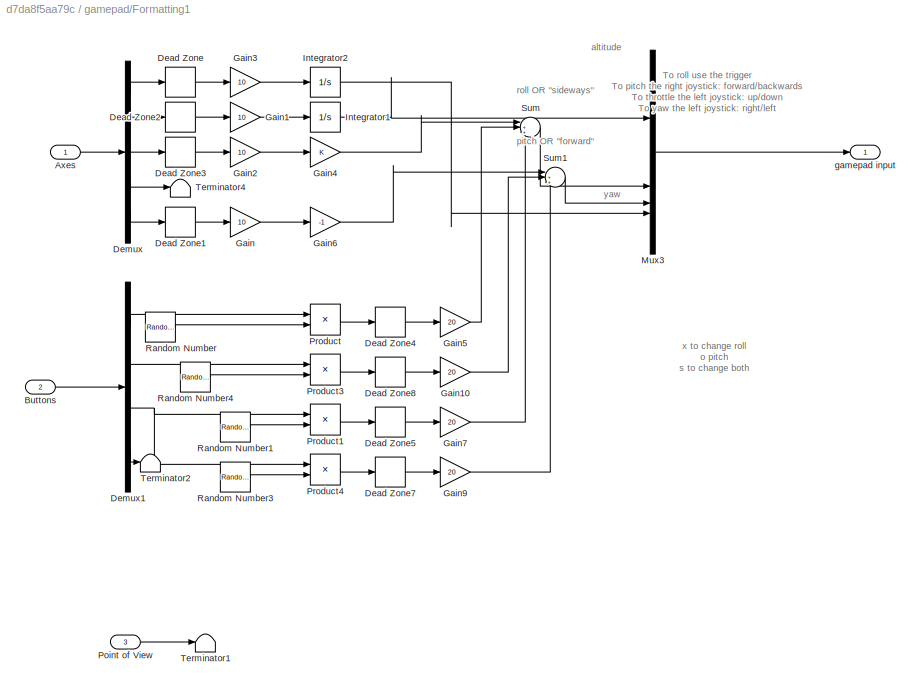
BLOCK [SubSystem] gamepad/Formatting1
BLOCK [Inport] gamepad/Formatting1/Axes
BLOCK [Inport] gamepad/Formatting1/Buttons
  Port = 2
BLOCK [DeadZone] gamepad/Formatting1/Dead Zone
  LowerValue = -0.2
  UpperValue = 0.2
BLOCK [DeadZone] gamepad/Formatting1/Dead Zone1
  LowerValue = -0.2
  UpperValue = 0.2
BLOCK [DeadZone] gamepad/Formatting1/Dead Zone2
  LowerValue = -0.2
  UpperValue = 0.2
BLOCK [DeadZone] gamepad/Formatting1/Dead Zone3
  LowerValue = -0.2
  UpperValue = 0.2
BLOCK [DeadZone] gamepad/Formatting1/Dead Zone4
  LowerValue = -0.2
  UpperValue = 0.2
BLOCK [DeadZone] gamepad/Formatting1/Dead Zone5
  LowerValue = -0.2
  UpperValue = 0.2
BLOCK [DeadZone] gamepad/Formatting1/Dead Zone7
  LowerValue = -0.2
  UpperValue = 0.2
BLOCK [DeadZone] gamepad/Formatting1/Dead Zone8
  LowerValue = -0.2
  UpperValue = 0.2
BLOCK [Demux] gamepad/Formatting1/Demux
  Outputs = 5
BLOCK [Demux] gamepad/Formatting1/Demux1
  Outputs = [1,1,1,7]
BLOCK [Gain] gamepad/Formatting1/Gain
  Gain = 10
BLOCK [Gain] gamepad/Formatting1/Gain1
  Gain = 10
BLOCK [Gain] gamepad/Formatting1/Gain10
  Gain = 20
BLOCK [Gain] gamepad/Formatting1/Gain2
  Gain = 10
BLOCK [Gain] gamepad/Formatting1/Gain3
  Gain = 10
BLOCK [Gain] gamepad/Formatting1/Gain4
BLOCK [Gain] gamepad/Formatting1/Gain5
  Gain = 20
BLOCK [Gain] gamepad/Formatting1/Gain6
  Gain = -1
BLOCK [Gain] gamepad/Formatting1/Gain7
  Gain = 20
BLOCK [Gain] gamepad/Formatting1/Gain9
  Gain = 20
BLOCK [Integrator] gamepad/Formatting1/Integrator1
  InitialCondition = -17
BLOCK [Integrator] gamepad/Formatting1/Integrator2
  InitialCondition = -45
BLOCK [Mux] gamepad/Formatting1/Mux3
  DisplayOption = bar
BLOCK [Inport] gamepad/Formatting1/Point of View
  Port = 3
BLOCK [Product] gamepad/Formatting1/Product
BLOCK [Product] gamepad/Formatting1/Product1
BLOCK [Product] gamepad/Formatting1/Product3
BLOCK [Product] gamepad/Formatting1/Product4
BLOCK [RandomNumber] gamepad/Formatting1/Random Number
  SampleTime = 0.1
BLOCK [RandomNumber] gamepad/Formatting1/Random Number1
  SampleTime = 0.1
  Seed = 2
BLOCK [RandomNumber] gamepad/Formatting1/Random Number3
  SampleTime = 0.1
  Seed = 3
BLOCK [RandomNumber] gamepad/Formatting1/Random Number4
  SampleTime = 0.1
  Seed = 1
BLOCK [Sum] gamepad/Formatting1/Sum
  Inputs = |+++
BLOCK [Sum] gamepad/Formatting1/Sum1
  Inputs = |+++
BLOCK [Terminator] gamepad/Formatting1/Terminator1
  Commented = on
BLOCK [Terminator] gamepad/Formatting1/Terminator2
BLOCK [Terminator] gamepad/Formatting1/Terminator4
BLOCK [Outport] gamepad/Formatting1/gamepad input
BLOCK [Reference] gamepad/Gamepad1  REF=vrlib/Joystick Input
  SourceBlock = vrlib/Joystick Input
  SourceType = Joystick Input
BLOCK [Outport] gamepad/gamepad input1
BLOCK [Constant] k
  Commented = on
  Value = [1;0;0]
  VectorParams1D = off
BLOCK [Scope] phi(t)
  Floating = off
  NameLocation = top
  NumInputPorts = 1
  ScopeSpecificationString = Simulink.scopes.TimeScopeBlockCfg('CurrentConfiguration', extmgr.ConfigurationSet(extmgr.Configuration('Core','General UI',true),extmgr.Configuration('Core','Source UI',true),extmgr.Configuration('Sources','WiredSimulink',true,'DataLoggingVariableName','ScopeData1'),extmgr.Configuration('Visuals','Time Domain',true,'SerializedDisplays',{struct('MinYLimReal','-1.00000','MaxYLimReal','1.00000','YLab...<+1406ch>
BLOCK [Scope] position
  Floating = off
  NumInputPorts = 3
  ScopeSpecificationString = Simulink.scopes.TimeScopeBlockCfg('CurrentConfiguration', extmgr.ConfigurationSet(extmgr.Configuration('Core','General UI',true),extmgr.Configuration('Core','Source UI',true),extmgr.Configuration('Sources','WiredSimulink',true,'DataLoggingVariableName','ScopeData7'),extmgr.Configuration('Visuals','Time Domain',true,'SerializedDisplays',{struct('MinYLimReal','-26.88759','MaxYLimReal','23.06144','YL...<+1590ch>
BLOCK [Scope] psi(t)
  Floating = off
  NameLocation = top
  NumInputPorts = 1
  ScopeSpecificationString = Simulink.scopes.TimeScopeBlockCfg('CurrentConfiguration', extmgr.ConfigurationSet(extmgr.Configuration('Core','General UI',true),extmgr.Configuration('Core','Source UI',true),extmgr.Configuration('Sources','WiredSimulink',true,'DataLoggingVariableName','ScopeData2'),extmgr.Configuration('Visuals','Time Domain',true,'SerializedDisplays',{struct('MinYLimReal','-1.00000','MaxYLimReal','1.00000','YLab...<+1407ch>
BLOCK [Scope] theta(t)
  Floating = off
  NameLocation = top
  NumInputPorts = 1
  ScopeSpecificationString = Simulink.scopes.TimeScopeBlockCfg('CurrentConfiguration', extmgr.ConfigurationSet(extmgr.Configuration('Core','General UI',true),extmgr.Configuration('Core','Source UI',true),extmgr.Configuration('Sources','WiredSimulink',true,'DataLoggingVariableName','ScopeData3'),extmgr.Configuration('Visuals','Time Domain',true,'SerializedDisplays',{struct('MinYLimReal','-1.47578','MaxYLimReal','6.83974','YLab...<+1407ch>
BLOCK [Scope] x(t)
  Floating = off
  NameLocation = top
  NumInputPorts = 1
  ScopeSpecificationString = Simulink.scopes.TimeScopeBlockCfg('CurrentConfiguration', extmgr.ConfigurationSet(extmgr.Configuration('Core','General UI',true),extmgr.Configuration('Core','Source UI',true),extmgr.Configuration('Sources','WiredSimulink',true,'DataLoggingVariableName','ScopeData4'),extmgr.Configuration('Visuals','Time Domain',true,'SerializedDisplays',{struct('MinYLimReal','64.13969','MaxYLimReal','75.78646','YLa...<+1392ch>
BLOCK [Scope] y(t)
  Floating = off
  NameLocation = top
  NumInputPorts = 1
  ScopeSpecificationString = Simulink.scopes.TimeScopeBlockCfg('CurrentConfiguration', extmgr.ConfigurationSet(extmgr.Configuration('Core','General UI',true),extmgr.Configuration('Core','Source UI',true),extmgr.Configuration('Sources','WiredSimulink',true,'DataLoggingVariableName','ScopeData5'),extmgr.Configuration('Visuals','Time Domain',true,'SerializedDisplays',{struct('MinYLimReal','66.40869','MaxYLimReal','67.13196','YLa...<+1394ch>
BLOCK [Scope] z(t)
  Floating = off
  NameLocation = top
  NumInputPorts = 1
  ScopeSpecificationString = Simulink.scopes.TimeScopeBlockCfg('CurrentConfiguration', extmgr.ConfigurationSet(extmgr.Configuration('Core','General UI',true),extmgr.Configuration('Core','Source UI',true),extmgr.Configuration('Sources','WiredSimulink',true,'DataLoggingVariableName','ScopeData6'),extmgr.Configuration('Visuals','Time Domain',true,'SerializedDisplays',{struct('MinYLimReal','-18.96666','MaxYLimReal','-16.86198','Y...<+1394ch>
ANNOTATION (root): $\beta$
ANNOTATION (root): Initial conditions
ANNOTATION (root): Visualization
ANNOTATION Flight Control System/Inner-loop PID controllers: A force applied to the system to get where you are. So the closer tyou are to the desired position the less force you need. The error says how much you force is actually needed
ANNOTATION Mathematical model: 45-degree rotation autonomous subsystem
ANNOTATION Mathematical model: For scaling time
ANNOTATION Mathematical model/Enabled quartonion rotation/rotation system/Quaternion rotation : $\beta$
ANNOTATION Mathematical model/Rigid-body dynamics1: $\nu$
ANNOTATION gamepad/Formatting1: x to change roll o pitch s to change both
ANNOTATION gamepad/Formatting1: To roll use the trigger To pitch the right joystick : forward/backwards To throttle the left joystick: up/down To yaw the left joystick : right/left
ANNOTATION gamepad/Formatting1: altitude
ANNOTATION gamepad/Formatting1: pitch OR "forward"
ANNOTATION gamepad/Formatting1: roll OR "sideways"
ANNOTATION gamepad/Formatting1: yaw
LINE Build vector of polynomials:1 -> Degrees to Radians:1
LINE Clock:1 -> Build vector of polynomials:1
LINE Constant10:1 -> Build vector of polynomials:2
LINE Constant1:1 -> Manual Switch1:1
LINE Constant2:1 -> Mux2:2
LINE Constant3:1 -> Formatting:3
LINE Constant4:1 -> Manual Switch1:2
LINE Constant5:1 -> Manual Switch2:2
LINE Constant6:1 -> Manual Switch2:1
LINE Constant7:1 -> Mux2:3
LINE Constant8:1 -> Mux2:4
LINE Constant:1 -> Mux2:1
LINE Degrees to Radians1:1 -> Rotation Angles to Quaternions:1
LINE Degrees to Radians:1 -> Gain:1
NET Demux1:1 -> position:1, x(t):1
NET Demux1:2 -> position:2, y(t):1
NET Demux1:3 -> position:3, z(t):1
LINE Demux1:4 -> Radians to Degrees:1
LINE Demux1:5 -> Radians to Degrees1:1
LINE Demux1:6 -> Radians to Degrees2:1
LINE Flight Control System/Inner-loop PID controllers/Ceil:1 -> Flight Control System/Inner-loop PID controllers/Gain:1
LINE Flight Control System/Inner-loop PID controllers/Degrees to Radians1:1 -> Flight Control System/Inner-loop PID controllers/Sum2:1
LINE Flight Control System/Inner-loop PID controllers/Degrees to Radians2:1 -> Flight Control System/Inner-loop PID controllers/Sum3:1
LINE Flight Control System/Inner-loop PID controllers/Degrees to Radians:1 -> Flight Control System/Inner-loop PID controllers/Sum1:1
LINE Flight Control System/Inner-loop PID controllers/Demux1:1 -> Flight Control System/Inner-loop PID controllers/Terminator:1
LINE Flight Control System/Inner-loop PID controllers/Demux1:2 -> Flight Control System/Inner-loop PID controllers/Terminator1:1
LINE Flight Control System/Inner-loop PID controllers/Demux1:3 -> Flight Control System/Inner-loop PID controllers/Sum:2
LINE Flight Control System/Inner-loop PID controllers/Demux1:4 -> Flight Control System/Inner-loop PID controllers/Sum1:2
LINE Flight Control System/Inner-loop PID controllers/Demux1:5 -> Flight Control System/Inner-loop PID controllers/Sum2:2
LINE Flight Control System/Inner-loop PID controllers/Demux1:6 -> Flight Control System/Inner-loop PID controllers/Sum3:2
LINE Flight Control System/Inner-loop PID controllers/Demux:1 -> Flight Control System/Inner-loop PID controllers/Sum:1
LINE Flight Control System/Inner-loop PID controllers/Demux:2 -> Flight Control System/Inner-loop PID controllers/Sum5:1
LINE Flight Control System/Inner-loop PID controllers/Demux:3 -> Flight Control System/Inner-loop PID controllers/Degrees to Radians1:1
LINE Flight Control System/Inner-loop PID controllers/Demux:4 -> Flight Control System/Inner-loop PID controllers/Degrees to Radians2:1
LINE Flight Control System/Inner-loop PID controllers/Gain:1 -> Flight Control System/Inner-loop PID controllers/Sample and Hold:1
LINE Flight Control System/Inner-loop PID controllers/Mux:1 -> Flight Control System/Inner-loop PID controllers/Fz,mx,my,mz:1
LINE Flight Control System/Inner-loop PID controllers/PID Controller1:1 -> Flight Control System/Inner-loop PID controllers/Saturation2:1
LINE Flight Control System/Inner-loop PID controllers/PID Controller2:1 -> Flight Control System/Inner-loop PID controllers/Saturation3:1
LINE Flight Control System/Inner-loop PID controllers/PID Controller3:1 -> Flight Control System/Inner-loop PID controllers/Saturation1:1
LINE Flight Control System/Inner-loop PID controllers/PID Controller:1 -> Flight Control System/Inner-loop PID controllers/Sum4:2
LINE Flight Control System/Inner-loop PID controllers/Pulse Generator:1 -> Flight Control System/Inner-loop PID controllers/Sample and Hold:trigger
LINE Flight Control System/Inner-loop PID controllers/Random Number:1 -> Flight Control System/Inner-loop PID controllers/Ceil:1
LINE Flight Control System/Inner-loop PID controllers/Sample and Hold:1 -> Flight Control System/Inner-loop PID controllers/Sum5:2
LINE Flight Control System/Inner-loop PID controllers/Saturation1:1 -> Flight Control System/Inner-loop PID controllers/Mux:4
LINE Flight Control System/Inner-loop PID controllers/Saturation2:1 -> Flight Control System/Inner-loop PID controllers/Mux:2
LINE Flight Control System/Inner-loop PID controllers/Saturation3:1 -> Flight Control System/Inner-loop PID controllers/Mux:3
NET Flight Control System/Inner-loop PID controllers/Saturation:1 -> Flight Control System/Inner-loop PID controllers/Mux:1, Flight Control System/Inner-loop PID controllers/Thrust(t):1
LINE Flight Control System/Inner-loop PID controllers/Sum1:1 -> Flight Control System/Inner-loop PID controllers/PID Controller1:1
LINE Flight Control System/Inner-loop PID controllers/Sum2:1 -> Flight Control System/Inner-loop PID controllers/PID Controller2:1
LINE Flight Control System/Inner-loop PID controllers/Sum3:1 -> Flight Control System/Inner-loop PID controllers/PID Controller3:1
LINE Flight Control System/Inner-loop PID controllers/Sum4:1 -> Flight Control System/Inner-loop PID controllers/Saturation:1
LINE Flight Control System/Inner-loop PID controllers/Sum5:1 -> Flight Control System/Inner-loop PID controllers/Degrees to Radians:1
LINE Flight Control System/Inner-loop PID controllers/Sum:1 -> Flight Control System/Inner-loop PID controllers/PID Controller:1
LINE Flight Control System/Inner-loop PID controllers/desired z,phi,theta,psi:1 -> Flight Control System/Inner-loop PID controllers/Demux:1
LINE Flight Control System/Inner-loop PID controllers/eta:1 -> Flight Control System/Inner-loop PID controllers/Demux1:1
LINE Flight Control System/Inner-loop PID controllers/gravity pre-compensation:1 -> Flight Control System/Inner-loop PID controllers/Sum4:1
LINE Flight Control System/Inner-loop PID controllers:1 -> Flight Control System/Fz,mx,my,mz:1
LINE Flight Control System/Manual Switch:1 -> Flight Control System/Inner-loop PID controllers:1
LINE Flight Control System/Outer loop position control/Demux1:1 -> Flight Control System/Outer loop position control/Sum:2
LINE Flight Control System/Outer loop position control/Demux1:2 -> Flight Control System/Outer loop position control/Sum1:2
LINE Flight Control System/Outer loop position control/Demux1:3 -> Flight Control System/Outer loop position control/Terminator:1
LINE Flight Control System/Outer loop position control/Demux1:4 -> Flight Control System/Outer loop position control/Terminator1:1
LINE Flight Control System/Outer loop position control/Demux1:5 -> Flight Control System/Outer loop position control/Terminator2:1
LINE Flight Control System/Outer loop position control/Demux1:6 -> Flight Control System/Outer loop position control/MATLAB Function:2
LINE Flight Control System/Outer loop position control/Demux2:1 -> Flight Control System/Outer loop position control/PID Controller:1
LINE Flight Control System/Outer loop position control/Demux2:2 -> Flight Control System/Outer loop position control/PID Controller2:1
LINE Flight Control System/Outer loop position control/Demux:1 -> Flight Control System/Outer loop position control/Sum:1
LINE Flight Control System/Outer loop position control/Demux:2 -> Flight Control System/Outer loop position control/Sum1:1
LINE Flight Control System/Outer loop position control/Demux:3 -> Flight Control System/Outer loop position control/Mux:1
LINE Flight Control System/Outer loop position control/Demux:4 -> Flight Control System/Outer loop position control/Mux:4
LINE Flight Control System/Outer loop position control/Gain:1 -> Flight Control System/Outer loop position control/Mux:3
LINE Flight Control System/Outer loop position control/MATLAB Function:1 -> Flight Control System/Outer loop position control/Demux2:1
LINE Flight Control System/Outer loop position control/Mux1:1 -> Flight Control System/Outer loop position control/MATLAB Function:1
LINE Flight Control System/Outer loop position control/Mux:1 -> Flight Control System/Outer loop position control/desired z,phi,theta,psi:1
LINE Flight Control System/Outer loop position control/PID Controller2:1 -> Flight Control System/Outer loop position control/Saturation:1
LINE Flight Control System/Outer loop position control/PID Controller:1 -> Flight Control System/Outer loop position control/Saturation1:1
LINE Flight Control System/Outer loop position control/Pos. refs:1 -> Flight Control System/Outer loop position control/Demux:1
LINE Flight Control System/Outer loop position control/Saturation1:1 -> Flight Control System/Outer loop position control/Gain:1
LINE Flight Control System/Outer loop position control/Saturation:1 -> Flight Control System/Outer loop position control/Mux:2
LINE Flight Control System/Outer loop position control/Sum1:1 -> Flight Control System/Outer loop position control/Mux1:2
LINE Flight Control System/Outer loop position control/Sum:1 -> Flight Control System/Outer loop position control/Mux1:1
LINE Flight Control System/Outer loop position control/eta:1 -> Flight Control System/Outer loop position control/Demux1:1
LINE Flight Control System/Outer loop position control:1 -> Flight Control System/Manual Switch:2
LINE Flight Control System/Pos. refs:1 -> Flight Control System/Outer loop position control:1
NET Flight Control System/eta:1 -> Flight Control System/Inner-loop PID controllers:2, Flight Control System/Outer loop position control:2
LINE Flight Control System/gamepad input:1 -> Flight Control System/Manual Switch:1
LINE Flight Control System:1 -> Manual Switch:2
LINE Formatting/Axes to VR Axes Camera Chase/Demux:1 -> Formatting/Axes to VR Axes Camera Chase/Mux:1
LINE Formatting/Axes to VR Axes Camera Chase/Demux:2 -> Formatting/Axes to VR Axes Camera Chase/Mux:3
LINE Formatting/Axes to VR Axes Camera Chase/Demux:3 -> Formatting/Axes to VR Axes Camera Chase/rad-->deg1:1
LINE Formatting/Axes to VR Axes Camera Chase/Mux:1 -> Formatting/Axes to VR Axes Camera Chase/Xe VR:1
LINE Formatting/Axes to VR Axes Camera Chase/Xe:1 -> Formatting/Axes to VR Axes Camera Chase/Demux:1
LINE Formatting/Axes to VR Axes Camera Chase/rad-->deg1:1 -> Formatting/Axes to VR Axes Camera Chase/Mux:2
LINE Formatting/Axes to VR Axes Camera Chase:1 -> Formatting/Rate Transition3:1
LINE Formatting/Axes to VR Axes Camera Iso/Demux:1 -> Formatting/Axes to VR Axes Camera Iso/Mux:1
LINE Formatting/Axes to VR Axes Camera Iso/Demux:2 -> Formatting/Axes to VR Axes Camera Iso/Mux:3
LINE Formatting/Axes to VR Axes Camera Iso/Demux:3 -> Formatting/Axes to VR Axes Camera Iso/rad-->deg1:1
LINE Formatting/Axes to VR Axes Camera Iso/Mux:1 -> Formatting/Axes to VR Axes Camera Iso/Xe VR:1
LINE Formatting/Axes to VR Axes Camera Iso/Xe:1 -> Formatting/Axes to VR Axes Camera Iso/Demux:1
LINE Formatting/Axes to VR Axes Camera Iso/rad-->deg1:1 -> Formatting/Axes to VR Axes Camera Iso/Mux:2
LINE Formatting/Axes to VR Axes Camera Iso:1 -> Formatting/Rate Transition2:1
LINE Formatting/Axes to VR Axes/Demux:1 -> Formatting/Axes to VR Axes/Mux:1
LINE Formatting/Axes to VR Axes/Demux:2 -> Formatting/Axes to VR Axes/Mux:3
LINE Formatting/Axes to VR Axes/Demux:3 -> Formatting/Axes to VR Axes/rad-->deg1:1
LINE Formatting/Axes to VR Axes/Mux:1 -> Formatting/Axes to VR Axes/Xe VR:1
LINE Formatting/Axes to VR Axes/Xe:1 -> Formatting/Axes to VR Axes/Demux:1
LINE Formatting/Axes to VR Axes/rad-->deg1:1 -> Formatting/Axes to VR Axes/Mux:2
LINE Formatting/Axes to VR Axes:1 -> Formatting/Rate Transition1:1
LINE Formatting/Camera bias Chase:1 -> Formatting/Axes to VR Axes Camera Chase:1
LINE Formatting/Camera bias Iso:1 -> Formatting/Axes to VR Axes Camera Iso:1
LINE Formatting/Euler to VR/Axis Angle Vector/2:1 -> Formatting/Euler to VR/Axis Angle Vector/Mux:2
LINE Formatting/Euler to VR/Axis Angle Vector/Constant:1 -> Formatting/Euler to VR/Axis Angle Vector/Switch:3
LINE Formatting/Euler to VR/Axis Angle Vector/Demux:1 -> Formatting/Euler to VR/Axis Angle Vector/Trigonometric Function2:1
LINE Formatting/Euler to VR/Axis Angle Vector/Demux:2 -> Formatting/Euler to VR/Axis Angle Vector/Product:1
LINE Formatting/Euler to VR/Axis Angle Vector/Mux:1 -> Formatting/Euler to VR/Axis Angle Vector/e0_norm:1
LINE Formatting/Euler to VR/Axis Angle Vector/Product:1 -> Formatting/Euler to VR/Axis Angle Vector/Mux:1
LINE Formatting/Euler to VR/Axis Angle Vector/Switch:1 -> Formatting/Euler to VR/Axis Angle Vector/Product:2
NET Formatting/Euler to VR/Axis Angle Vector/Trigonometric Function2:1 -> Formatting/Euler to VR/Axis Angle Vector/2:1, Formatting/Euler to VR/Axis Angle Vector/Trigonometric Function:1
NET Formatting/Euler to VR/Axis Angle Vector/Trigonometric Function:1 -> Formatting/Euler to VR/Axis Angle Vector/Switch:1, Formatting/Euler to VR/Axis Angle Vector/Switch:2
LINE Formatting/Euler to VR/Axis Angle Vector/e0:1 -> Formatting/Euler to VR/Axis Angle Vector/Demux:1
LINE Formatting/Euler to VR/Axis Angle Vector:1 -> Formatting/Euler to VR/Axis Angle:1
NET Formatting/Euler to VR/Euler Angles:1 -> Formatting/Euler to VR/Selector1:1, Formatting/Euler to VR/Selector2:1, Formatting/Euler to VR/Selector:1
LINE Formatting/Euler to VR/Mux1:1 -> Formatting/Euler to VR/Quaternion Normalization1:1
LINE Formatting/Euler to VR/Mux2:1 -> Formatting/Euler to VR/Quaternion Normalization2:1
LINE Formatting/Euler to VR/Mux:1 -> Formatting/Euler to VR/Quaternion Normalization:1
LINE Formatting/Euler to VR/Quaternion Multiplication (Pitch & Yaw):1 -> Formatting/Euler to VR/Quaternion Multiplication (Roll):1
LINE Formatting/Euler to VR/Quaternion Multiplication (Roll):1 -> Formatting/Euler to VR/Axis Angle Vector:1
NET Formatting/Euler to VR/Quaternion Normalization/1//2:1 -> Formatting/Euler to VR/Quaternion Normalization/Trigonometric Function1:1, Formatting/Euler to VR/Quaternion Normalization/Trigonometric Function:1
LINE Formatting/Euler to VR/Quaternion Normalization/Demux:1 -> Formatting/Euler to VR/Quaternion Normalization/1//2:1
LINE Formatting/Euler to VR/Quaternion Normalization/Demux:2 -> Formatting/Euler to VR/Quaternion Normalization/Product:2
LINE Formatting/Euler to VR/Quaternion Normalization/Mux:1 -> Formatting/Euler to VR/Quaternion Normalization/e0_norm:1
LINE Formatting/Euler to VR/Quaternion Normalization/Product:1 -> Formatting/Euler to VR/Quaternion Normalization/Mux:2
LINE Formatting/Euler to VR/Quaternion Normalization/Trigonometric Function1:1 -> Formatting/Euler to VR/Quaternion Normalization/Mux:1
LINE Formatting/Euler to VR/Quaternion Normalization/Trigonometric Function:1 -> Formatting/Euler to VR/Quaternion Normalization/Product:1
LINE Formatting/Euler to VR/Quaternion Normalization/e0:1 -> Formatting/Euler to VR/Quaternion Normalization/Demux:1
NET Formatting/Euler to VR/Quaternion Normalization1/1//2:1 -> Formatting/Euler to VR/Quaternion Normalization1/Trigonometric Function1:1, Formatting/Euler to VR/Quaternion Normalization1/Trigonometric Function:1
LINE Formatting/Euler to VR/Quaternion Normalization1/Demux:1 -> Formatting/Euler to VR/Quaternion Normalization1/1//2:1
LINE Formatting/Euler to VR/Quaternion Normalization1/Demux:2 -> Formatting/Euler to VR/Quaternion Normalization1/Product:2
LINE Formatting/Euler to VR/Quaternion Normalization1/Mux:1 -> Formatting/Euler to VR/Quaternion Normalization1/e0_norm:1
LINE Formatting/Euler to VR/Quaternion Normalization1/Product:1 -> Formatting/Euler to VR/Quaternion Normalization1/Mux:2
LINE Formatting/Euler to VR/Quaternion Normalization1/Trigonometric Function1:1 -> Formatting/Euler to VR/Quaternion Normalization1/Mux:1
LINE Formatting/Euler to VR/Quaternion Normalization1/Trigonometric Function:1 -> Formatting/Euler to VR/Quaternion Normalization1/Product:1
LINE Formatting/Euler to VR/Quaternion Normalization1/e0:1 -> Formatting/Euler to VR/Quaternion Normalization1/Demux:1
LINE Formatting/Euler to VR/Quaternion Normalization1:1 -> Formatting/Euler to VR/Quaternion Multiplication (Pitch & Yaw):2
NET Formatting/Euler to VR/Quaternion Normalization2/1//2:1 -> Formatting/Euler to VR/Quaternion Normalization2/Trigonometric Function1:1, Formatting/Euler to VR/Quaternion Normalization2/Trigonometric Function:1
LINE Formatting/Euler to VR/Quaternion Normalization2/Demux:1 -> Formatting/Euler to VR/Quaternion Normalization2/1//2:1
LINE Formatting/Euler to VR/Quaternion Normalization2/Demux:2 -> Formatting/Euler to VR/Quaternion Normalization2/Product:2
LINE Formatting/Euler to VR/Quaternion Normalization2/Mux:1 -> Formatting/Euler to VR/Quaternion Normalization2/e0_norm:1
LINE Formatting/Euler to VR/Quaternion Normalization2/Product:1 -> Formatting/Euler to VR/Quaternion Normalization2/Mux:2
LINE Formatting/Euler to VR/Quaternion Normalization2/Trigonometric Function1:1 -> Formatting/Euler to VR/Quaternion Normalization2/Mux:1
LINE Formatting/Euler to VR/Quaternion Normalization2/Trigonometric Function:1 -> Formatting/Euler to VR/Quaternion Normalization2/Product:1
LINE Formatting/Euler to VR/Quaternion Normalization2/e0:1 -> Formatting/Euler to VR/Quaternion Normalization2/Demux:1
LINE Formatting/Euler to VR/Quaternion Normalization2:1 -> Formatting/Euler to VR/Quaternion Multiplication (Pitch & Yaw):1
LINE Formatting/Euler to VR/Quaternion Normalization:1 -> Formatting/Euler to VR/Quaternion Multiplication (Roll):2
LINE Formatting/Euler to VR/Selector1:1 -> Formatting/Euler to VR/Mux1:1
LINE Formatting/Euler to VR/Selector2:1 -> Formatting/Euler to VR/Mux:1
LINE Formatting/Euler to VR/Selector:1 -> Formatting/Euler to VR/Mux2:1
LINE Formatting/Euler to VR/Vr Pitch Axes:1 -> Formatting/Euler to VR/Mux1:2
LINE Formatting/Euler to VR/Vr Roll Axes:1 -> Formatting/Euler to VR/Mux:2
LINE Formatting/Euler to VR/Vr Yaw Axes:1 -> Formatting/Euler to VR/Mux2:2
LINE Formatting/Euler to VR:1 -> Formatting/Rate Transition:1
LINE Formatting/Propeller velocities:1 -> Formatting/Subsystem:1
LINE Formatting/Quaternions to Rotation Angles:1 -> Formatting/Euler to VR:1
LINE Formatting/Rate Transition1:1 -> Formatting/Out2:1
LINE Formatting/Rate Transition2:1 -> Formatting/Out7:1
LINE Formatting/Rate Transition3:1 -> Formatting/Out8:1
LINE Formatting/Rate Transition:1 -> Formatting/Out1:1
LINE Formatting/Subsystem/Bias1:1 -> Formatting/Subsystem/Mux1:2
LINE Formatting/Subsystem/Bias2:1 -> Formatting/Subsystem/Mux2:2
LINE Formatting/Subsystem/Bias3:1 -> Formatting/Subsystem/Mux3:2
LINE Formatting/Subsystem/Bias:1 -> Formatting/Subsystem/Mux:2
NET Formatting/Subsystem/Constant:1 -> Formatting/Subsystem/Mux1:1, Formatting/Subsystem/Mux2:1, Formatting/Subsystem/Mux3:1, Formatting/Subsystem/Mux:1
LINE Formatting/Subsystem/Data Type Conversion:1 -> Formatting/Subsystem/Gain:1
LINE Formatting/Subsystem/Demux:1 -> Formatting/Subsystem/Bias:1
LINE Formatting/Subsystem/Demux:2 -> Formatting/Subsystem/Bias1:1
LINE Formatting/Subsystem/Demux:3 -> Formatting/Subsystem/Bias2:1
LINE Formatting/Subsystem/Demux:4 -> Formatting/Subsystem/Bias3:1
LINE Formatting/Subsystem/Gain:1 -> Formatting/Subsystem/Integrator:1
LINE Formatting/Subsystem/Integrator:1 -> Formatting/Subsystem/Rate Transition2:1
LINE Formatting/Subsystem/Mux1:1 -> Formatting/Subsystem/Position Blade 2:1
LINE Formatting/Subsystem/Mux2:1 -> Formatting/Subsystem/Position Blade 3:1
LINE Formatting/Subsystem/Mux3:1 -> Formatting/Subsystem/Position Blade 4:1
LINE Formatting/Subsystem/Mux:1 -> Formatting/Subsystem/Position Blade1:1
LINE Formatting/Subsystem/Propeller velocities:1 -> Formatting/Subsystem/Data Type Conversion:1
LINE Formatting/Subsystem/Rate Transition2:1 -> Formatting/Subsystem/Demux:1
LINE Formatting/Subsystem:1 -> Formatting/Position Blade1:1
LINE Formatting/Subsystem:2 -> Formatting/Position Blade 2:1
LINE Formatting/Subsystem:3 -> Formatting/Position Blade 3:1
LINE Formatting/Subsystem:4 -> Formatting/Position Blade 4:1
NET Formatting/p:1 -> Formatting/Axes to VR Axes:1, Formatting/Camera bias Chase:1, Formatting/Camera bias Iso:1
LINE Formatting/q:1 -> Formatting/Quaternions to Rotation Angles:1
LINE Formatting:1 -> VR Sink:1
LINE Formatting:2 -> VR Sink:2
LINE Formatting:3 -> VR Sink:3
LINE Formatting:4 -> VR Sink:4
LINE Formatting:5 -> VR Sink:5
LINE Formatting:6 -> VR Sink:6
LINE Formatting:7 -> VR Sink:7
LINE Formatting:8 -> VR Sink:8
LINE Gain:1 -> Trigonometric Function:1
LINE Manual Switch1:1 -> Degrees to Radians1:1
LINE Manual Switch2:1 -> Mux:1
LINE Manual Switch3:1 -> Flight Control System:1
LINE Manual Switch:1 -> Mathematical model:1
LINE Mathematical model/ memory hold block:1 -> Mathematical model/Quaternion Multiplication:2
LINE Mathematical model/Clock3:1 -> Mathematical model/scaled time 2:1
LINE Mathematical model/Demux1:1 -> Mathematical model/Integrator1:2
LINE Mathematical model/Demux1:2 -> Mathematical model/Integrator3:2
LINE Mathematical model/Enabled quartonion rotation/axis vector rotation:1 -> Mathematical model/Enabled quartonion rotation/rotation system:2
NET Mathematical model/Enabled quartonion rotation/rotation system/Product1:1 -> Mathematical model/Enabled quartonion rotation/rotation system/Switch:1, Mathematical model/Enabled quartonion rotation/rotation system/q2:1
LINE Mathematical model/Enabled quartonion rotation/rotation system/Quaternion Inverse:1 -> Mathematical model/Enabled quartonion rotation/rotation system/Product1:2
LINE Mathematical model/Enabled quartonion rotation/rotation system/Quaternion rotation /Build vector of polynomials:1 -> Mathematical model/Enabled quartonion rotation/rotation system/Quaternion rotation /Manual Switch:1
LINE Mathematical model/Enabled quartonion rotation/rotation system/Quaternion rotation /Constant1:1 -> Mathematical model/Enabled quartonion rotation/rotation system/Quaternion rotation /Build vector of polynomials:2
LINE Mathematical model/Enabled quartonion rotation/rotation system/Quaternion rotation /Constant:1 -> Mathematical model/Enabled quartonion rotation/rotation system/Quaternion rotation /Manual Switch:2
LINE Mathematical model/Enabled quartonion rotation/rotation system/Quaternion rotation /Degrees to Radians:1 -> Mathematical model/Enabled quartonion rotation/rotation system/Quaternion rotation /Gain:1
LINE Mathematical model/Enabled quartonion rotation/rotation system/Quaternion rotation /Gain:1 -> Mathematical model/Enabled quartonion rotation/rotation system/Quaternion rotation /Trigonometric Function:1
LINE Mathematical model/Enabled quartonion rotation/rotation system/Quaternion rotation /Manual Switch:1 -> Mathematical model/Enabled quartonion rotation/rotation system/Quaternion rotation /Degrees to Radians:1
LINE Mathematical model/Enabled quartonion rotation/rotation system/Quaternion rotation /Mux:1 -> Mathematical model/Enabled quartonion rotation/rotation system/Quaternion rotation /q rotation:1
LINE Mathematical model/Enabled quartonion rotation/rotation system/Quaternion rotation /Product:1 -> Mathematical model/Enabled quartonion rotation/rotation system/Quaternion rotation /Mux:2
LINE Mathematical model/Enabled quartonion rotation/rotation system/Quaternion rotation /Trigonometric Function:1 -> Mathematical model/Enabled quartonion rotation/rotation system/Quaternion rotation /Product:2
LINE Mathematical model/Enabled quartonion rotation/rotation system/Quaternion rotation /Trigonometric Function:2 -> Mathematical model/Enabled quartonion rotation/rotation system/Quaternion rotation /Mux:1
LINE Mathematical model/Enabled quartonion rotation/rotation system/Quaternion rotation /axis vector rotation:1 -> Mathematical model/Enabled quartonion rotation/rotation system/Quaternion rotation /Product:1
LINE Mathematical model/Enabled quartonion rotation/rotation system/Quaternion rotation /t:1 -> Mathematical model/Enabled quartonion rotation/rotation system/Quaternion rotation /Build vector of polynomials:1
NET Mathematical model/Enabled quartonion rotation/rotation system/Quaternion rotation :1 -> Mathematical model/Enabled quartonion rotation/rotation system/Product1:1, Mathematical model/Enabled quartonion rotation/rotation system/Quaternion Inverse:1, Mathematical model/Enabled quartonion rotation/rotation system/Switch:3, Mathematical model/Enabled quartonion rotation/rotation system/q1:1
LINE Mathematical model/Enabled quartonion rotation/rotation system/Switch:1 -> Mathematical model/Enabled quartonion rotation/rotation system/q:1
LINE Mathematical model/Enabled quartonion rotation/rotation system/axis vector rotation:1 -> Mathematical model/Enabled quartonion rotation/rotation system/Quaternion rotation :1
NET Mathematical model/Enabled quartonion rotation/rotation system/time_step:1 -> Mathematical model/Enabled quartonion rotation/rotation system/Quaternion rotation :2, Mathematical model/Enabled quartonion rotation/rotation system/Switch:2
LINE Mathematical model/Enabled quartonion rotation/rotation system:1 -> Mathematical model/Enabled quartonion rotation/q:1
LINE Mathematical model/Enabled quartonion rotation/rotation system:2 -> Mathematical model/Enabled quartonion rotation/q1:1
LINE Mathematical model/Enabled quartonion rotation/rotation system:3 -> Mathematical model/Enabled quartonion rotation/q2:1
LINE Mathematical model/Enabled quartonion rotation/time_step:1 -> Mathematical model/Enabled quartonion rotation/rotation system:1
LINE Mathematical model/Enabled quartonion rotation:1 -> Mathematical model/ memory hold block:1
LINE Mathematical model/Enabled quartonion rotation:2 -> Mathematical model/ memory hold block:2
LINE Mathematical model/Enabled quartonion rotation:3 -> Mathematical model/ memory hold block:3
LINE Mathematical model/Init. cond.:1 -> Mathematical model/Demux1:1
LINE Mathematical model/Integrator1:1 -> Mathematical model/p:1
LINE Mathematical model/Integrator3:1 -> Mathematical model/Quaternion Multiplication:1
LINE Mathematical model/Quaternion Multiplication:1 -> Mathematical model/Quaternion Normalize1:1
NET Mathematical model/Quaternion Normalize1:1 -> Mathematical model/Quaternion-based kinematics1:2, Mathematical model/gravity1:1, Mathematical model/q:1
LINE Mathematical model/Quaternion-based kinematics1/Demux:1 -> Mathematical model/Quaternion-based kinematics1/Mux:1
LINE Mathematical model/Quaternion-based kinematics1/Demux:2 -> Mathematical model/Quaternion-based kinematics1/Mux:2
LINE Mathematical model/Quaternion-based kinematics1/Demux:3 -> Mathematical model/Quaternion-based kinematics1/Mux:3
LINE Mathematical model/Quaternion-based kinematics1/Demux:4 -> Mathematical model/Quaternion-based kinematics1/Mux1:2
LINE Mathematical model/Quaternion-based kinematics1/Demux:5 -> Mathematical model/Quaternion-based kinematics1/Mux1:3
LINE Mathematical model/Quaternion-based kinematics1/Demux:6 -> Mathematical model/Quaternion-based kinematics1/Mux1:4
LINE Mathematical model/Quaternion-based kinematics1/Gain:1 -> Mathematical model/Quaternion-based kinematics1/q_dot:1
LINE Mathematical model/Quaternion-based kinematics1/Ground:1 -> Mathematical model/Quaternion-based kinematics1/Mux1:1
LINE Mathematical model/Quaternion-based kinematics1/Mux1:1 -> Mathematical model/Quaternion-based kinematics1/Quaternion Multiplication:2
LINE Mathematical model/Quaternion-based kinematics1/Mux:1 -> Mathematical model/Quaternion-based kinematics1/Quaternion Rotation:2
LINE Mathematical model/Quaternion-based kinematics1/Quaternion Conjugate:1 -> Mathematical model/Quaternion-based kinematics1/Quaternion Rotation:1
LINE Mathematical model/Quaternion-based kinematics1/Quaternion Multiplication:1 -> Mathematical model/Quaternion-based kinematics1/Gain:1
LINE Mathematical model/Quaternion-based kinematics1/Quaternion Rotation:1 -> Mathematical model/Quaternion-based kinematics1/p_dot:1
LINE Mathematical model/Quaternion-based kinematics1/nu:1 -> Mathematical model/Quaternion-based kinematics1/Demux:1
NET Mathematical model/Quaternion-based kinematics1/q:1 -> Mathematical model/Quaternion-based kinematics1/Quaternion Conjugate:1, Mathematical model/Quaternion-based kinematics1/Quaternion Multiplication:1
LINE Mathematical model/Quaternion-based kinematics1:1 -> Mathematical model/Integrator1:1
LINE Mathematical model/Quaternion-based kinematics1:2 -> Mathematical model/Integrator3:1
LINE Mathematical model/Relational Operator2:1 -> Mathematical model/Enabled quartonion rotation:enable
LINE Mathematical model/Rigid-body dynamics1/Constant1:1 -> Mathematical model/Rigid-body dynamics1/MATLAB Function:3
LINE Mathematical model/Rigid-body dynamics1/Constant:1 -> Mathematical model/Rigid-body dynamics1/MATLAB Function:2
LINE Mathematical model/Rigid-body dynamics1/Gain:1 -> Mathematical model/Rigid-body dynamics1/Integrator1:1
NET Mathematical model/Rigid-body dynamics1/Ground:1 -> Mathematical model/Rigid-body dynamics1/Mux:1, Mathematical model/Rigid-body dynamics1/Mux:2
NET Mathematical model/Rigid-body dynamics1/Integrator1:1 -> Mathematical model/Rigid-body dynamics1/MATLAB Function:1, Mathematical model/Rigid-body dynamics1/nu:1
LINE Mathematical model/Rigid-body dynamics1/MATLAB Function:1 -> Mathematical model/Rigid-body dynamics1/Sum:2
LINE Mathematical model/Rigid-body dynamics1/Mux:1 -> Mathematical model/Rigid-body dynamics1/Sum:1
LINE Mathematical model/Rigid-body dynamics1/Sum:1 -> Mathematical model/Rigid-body dynamics1/Gain:1
LINE Mathematical model/Rigid-body dynamics1/tau_g:1 -> Mathematical model/Rigid-body dynamics1/Sum:3
LINE Mathematical model/Rigid-body dynamics1/tau_p:1 -> Mathematical model/Rigid-body dynamics1/Mux:3
LINE Mathematical model/Rigid-body dynamics1:1 -> Mathematical model/Quaternion-based kinematics1:1
LINE Mathematical model/Unit Delay3:1 -> Mathematical model/scaled time 2:2
LINE Mathematical model/gravity1/Constant:1 -> Mathematical model/gravity1/Mux:1
LINE Mathematical model/gravity1/Demux:1 -> Mathematical model/gravity1/Terminator:1
LINE Mathematical model/gravity1/Demux:2 -> Mathematical model/gravity1/Mux1:1
LINE Mathematical model/gravity1/Manual Switch:1 -> Mathematical model/gravity1/Mux2:1
LINE Mathematical model/gravity1/Math Function:1 -> Mathematical model/gravity1/Matrix Multiply:1
LINE Mathematical model/gravity1/Matrix Multiply:1 -> Mathematical model/gravity1/Manual Switch:1
LINE Mathematical model/gravity1/Mux1:1 -> Mathematical model/gravity1/tau_g:1
LINE Mathematical model/gravity1/Mux:1 -> Mathematical model/gravity1/Quaternion Multiplication:2
LINE Mathematical model/gravity1/Quaternion Conjugate:1 -> Mathematical model/gravity1/Quaternion Multiplication1:2
LINE Mathematical model/gravity1/Quaternion Multiplication1:1 -> Mathematical model/gravity1/Demux:1
LINE Mathematical model/gravity1/Quaternion Multiplication:1 -> Mathematical model/gravity1/Quaternion Multiplication1:1
LINE Mathematical model/gravity1/gravity vector1:1 -> Mathematical model/gravity1/Mux:2
LINE Mathematical model/gravity1/gravity vector:1 -> Mathematical model/gravity1/Matrix Multiply:2
NET Mathematical model/gravity1/q:1 -> Mathematical model/gravity1/Quaternion Conjugate:1, Mathematical model/gravity1/Quaternion Multiplication:1
LINE Mathematical model/gravity1/zeros1:1 -> Mathematical model/gravity1/Mux1:2
NET Mathematical model/gravity1/zeros:1 -> Mathematical model/gravity1/Manual Switch:2, Mathematical model/gravity1/Mux2:2
LINE Mathematical model/gravity1:1 -> Mathematical model/Rigid-body dynamics1:1
LINE Mathematical model/k1:1 -> Mathematical model/Enabled quartonion rotation:2
NET Mathematical model/scaled time 2:1 -> Mathematical model/ memory hold block:4, Mathematical model/Enabled quartonion rotation:1, Mathematical model/Relational Operator2:2
LINE Mathematical model/scaled time 2:2 -> Mathematical model/Unit Delay3:1
LINE Mathematical model/tau_p:1 -> Mathematical model/Rigid-body dynamics1:2
LINE Mathematical model/time_interval(s)1:1 -> Mathematical model/Relational Operator2:1
NET Mathematical model:1 -> Formatting:1, Mux1:1
NET Mathematical model:2 -> Formatting:2, Quaternions to Rotation Angles:1
NET Mux1:1 -> Demux1:1, Flight Control System:2
LINE Mux2:1 -> Manual Switch3:2
LINE Mux3:1 -> Quaternion Normalize:1
LINE Mux:1 -> Mathematical model:2
LINE OL inputs:1 -> Manual Switch:1
LINE Position refs (x,y,z,psi):1 -> Manual Switch3:1
LINE Product:1 -> Mux3:2
LINE Quaternions to Rotation Angles:1 -> Mux1:2
NET Radians to Degrees1:1 -> Rotation:2, theta(t):1
NET Radians to Degrees2:1 -> Rotation:3, psi(t):1
NET Radians to Degrees:1 -> Rotation:1, phi(t):1
LINE Rotation Angles to Quaternions:1 -> Mux:2
LINE Trigonometric Function:1 -> Product:2
LINE Trigonometric Function:2 -> Mux3:1
LINE gamepad/Formatting1/Axes:1 -> gamepad/Formatting1/Demux:1
LINE gamepad/Formatting1/Buttons:1 -> gamepad/Formatting1/Demux1:1
LINE gamepad/Formatting1/Dead Zone1:1 -> gamepad/Formatting1/Gain:1
LINE gamepad/Formatting1/Dead Zone2:1 -> gamepad/Formatting1/Gain1:1
LINE gamepad/Formatting1/Dead Zone3:1 -> gamepad/Formatting1/Gain2:1
LINE gamepad/Formatting1/Dead Zone4:1 -> gamepad/Formatting1/Gain5:1
LINE gamepad/Formatting1/Dead Zone5:1 -> gamepad/Formatting1/Gain7:1
LINE gamepad/Formatting1/Dead Zone7:1 -> gamepad/Formatting1/Gain9:1
LINE gamepad/Formatting1/Dead Zone8:1 -> gamepad/Formatting1/Gain10:1
LINE gamepad/Formatting1/Dead Zone:1 -> gamepad/Formatting1/Gain3:1
LINE gamepad/Formatting1/Demux1:1 -> gamepad/Formatting1/Product:1
LINE gamepad/Formatting1/Demux1:2 -> gamepad/Formatting1/Product3:1
NET gamepad/Formatting1/Demux1:3 -> gamepad/Formatting1/Product1:1, gamepad/Formatting1/Product4:1
LINE gamepad/Formatting1/Demux1:4 -> gamepad/Formatting1/Terminator2:1
LINE gamepad/Formatting1/Demux:1 -> gamepad/Formatting1/Dead Zone:1
LINE gamepad/Formatting1/Demux:2 -> gamepad/Formatting1/Dead Zone2:1
LINE gamepad/Formatting1/Demux:3 -> gamepad/Formatting1/Dead Zone3:1
LINE gamepad/Formatting1/Demux:4 -> gamepad/Formatting1/Terminator4:1
LINE gamepad/Formatting1/Demux:5 -> gamepad/Formatting1/Dead Zone1:1
LINE gamepad/Formatting1/Gain10:1 -> gamepad/Formatting1/Sum1:2
LINE gamepad/Formatting1/Gain1:1 -> gamepad/Formatting1/Integrator1:1
LINE gamepad/Formatting1/Gain2:1 -> gamepad/Formatting1/Gain4:1
LINE gamepad/Formatting1/Gain3:1 -> gamepad/Formatting1/Integrator2:1
LINE gamepad/Formatting1/Gain4:1 -> gamepad/Formatting1/Sum:1
LINE gamepad/Formatting1/Gain5:1 -> gamepad/Formatting1/Sum:2
LINE gamepad/Formatting1/Gain6:1 -> gamepad/Formatting1/Sum1:1
LINE gamepad/Formatting1/Gain7:1 -> gamepad/Formatting1/Sum:3
LINE gamepad/Formatting1/Gain9:1 -> gamepad/Formatting1/Sum1:3
LINE gamepad/Formatting1/Gain:1 -> gamepad/Formatting1/Gain6:1
LINE gamepad/Formatting1/Integrator1:1 -> gamepad/Formatting1/Mux3:1
LINE gamepad/Formatting1/Integrator2:1 -> gamepad/Formatting1/Mux3:4
LINE gamepad/Formatting1/Mux3:1 -> gamepad/Formatting1/gamepad input:1
LINE gamepad/Formatting1/Point of View:1 -> gamepad/Formatting1/Terminator1:1
LINE gamepad/Formatting1/Product1:1 -> gamepad/Formatting1/Dead Zone5:1
LINE gamepad/Formatting1/Product3:1 -> gamepad/Formatting1/Dead Zone8:1
LINE gamepad/Formatting1/Product4:1 -> gamepad/Formatting1/Dead Zone7:1
LINE gamepad/Formatting1/Product:1 -> gamepad/Formatting1/Dead Zone4:1
LINE gamepad/Formatting1/Random Number1:1 -> gamepad/Formatting1/Product1:2
LINE gamepad/Formatting1/Random Number3:1 -> gamepad/Formatting1/Product4:2
LINE gamepad/Formatting1/Random Number4:1 -> gamepad/Formatting1/Product3:2
LINE gamepad/Formatting1/Random Number:1 -> gamepad/Formatting1/Product:2
LINE gamepad/Formatting1/Sum1:1 -> gamepad/Formatting1/Mux3:3
LINE gamepad/Formatting1/Sum:1 -> gamepad/Formatting1/Mux3:2
LINE gamepad/Formatting1:1 -> gamepad/gamepad input1:1
LINE gamepad/Gamepad1:1 -> gamepad/Formatting1:1
LINE gamepad/Gamepad1:2 -> gamepad/Formatting1:2
LINE gamepad:1 -> Flight Control System:3
LINE k:1 -> Product:1
note: NET lines group one-source signal fan-out (src -> all destinations, sorted); 1:1 wires keep LINE
CHART Flight Control System/Outer loop position control/MATLAB Function states=1 transitions=1
  STATE_LABEL 'eML_blk_kernel()'
  STATE_LABEL "SCRIPT:\nfunction Deltap_b = fcn(Deltap_e,psi)\n\nR = [ cos(psi) , -sin(psi) ;\n      sin(psi) ,  cos(psi) ];\n\nDeltap_b = R'*Deltap_e;\n"
CHART Mathematical model/ memory hold block states=1 transitions=1
  STATE_LABEL 'eML_blk_kernel()'
  STATE_LABEL 'SCRIPT:\nfunction q2  = fcn(q,q_forward,q_inverse,time)\n% dq = floor(q(1)*10000);% represenation of q1 as a 4 digit number\n% prev_dq = floor(prev_q(1)*10000); % previous q1\n% if q ==  [0; 0; 0; 0] \n%     q = [1 ;0; 0; 0];\n% end\n% disp(q);\n% \n% if dq ==  floor(q_inverse(1)*10000)\n%  prev_q = q(1);\n% end\n% \n% if dq == floor(q_forward(1)*10000) && prev_dq ==  floor(q_inverse(1)*10000) % 45 degree back...<+216ch>'
CHART Mathematical model/Enabled
quartonion rotation/rotation system/RotateMatrix states=1 transitions=1
  STATE_LABEL 'eML_blk_kernel()'
  STATE_LABEL 'SCRIPT:\nfunction rotated_vector = applyQuaternionRotation(q, vector)\n    % quaternion components\n    w = q(1);\n    x = q(2);\n    y = q(3);\n    z = q(4);\n    % Quaternion rotation matrix\n    R = [1 - 2*y^2 - 2*z^2, 2*x*y - 2*z*w, 2*x*z + 2*y*w;\n         2*x*y + 2*z*w, 1 - 2*x^2 - 2*z^2, 2*y*z - 2*x*w;\n         2*x*z - 2*y*w, 2*y*z + 2*x*w, 1 - 2*x^2 - 2*y^2];\n    % rotate\n    rotated_vector = R * v...<+11ch>'
CHART Build vector of polynomials states=1 transitions=1
  STATE_LABEL 'eML_blk_kernel()'
  STATE_LABEL "SCRIPT:\nfunction yd = fcn(t,alpha_vect)\n\n    %t_vect0 = [ 1 ; t ; t^2 ; t^3 ; t^4 ; t^5 ]; % vector of t values\n    t_vect0 = [1; t; t^2; t^3];  % vector of t values for cubic polynomial\n \nyd = t_vect0'*alpha_vect;\n"
CHART Mathematical model/Enabled
quartonion rotation/rotation system/Quaternion rotation /Build vector of polynomials states=1 transitions=1
  STATE_LABEL 'eML_blk_kernel()'
  STATE_LABEL "SCRIPT:\nfunction yd = fcn(t,alpha_vect)\n\n\n    t_vect0 = [ 1 ; t ; t^2 ; t^3 ; t^4 ; t^5 ]; % vector of t values\n    %t_vect0 = [ 1 ; t ; t^2 ; t^3 ]; % vector of t values\n\n\nyd = t_vect0'*alpha_vect;\n"
CHART Mathematical model/Rigid-body dynamics1/MATLAB Function states=1 transitions=1
  STATE_LABEL 'eML_blk_kernel()'
  STATE_LABEL 'SCRIPT:\nfunction Cnunu = fcn(nu,m,Ic)\n\nv = nu(1:3);  % linear velocities (expressed in the body frame)\nomega = nu(4:6); % angular velocities (expressed in the body frame)\n\n% Coriolis term\nCnunu = [ cross(omega,m*v) ; -cross(Ic*omega,omega) ];\n\n'
CHART Mathematical model/Enabled
quartonion rotation/rotation system/generate value states=1 transitions=1
  STATE_LABEL 'eML_blk_kernel()'
  STATE_LABEL 'SCRIPT:\nfunction y = random_counter()\n    persistent counter;\n    \n    % Initialize counter if not already initialized\n    if isempty(counter)\n        counter = 0;\n    end\n    \n    % Increment counter\n    counter = counter + 1;\n    display(counter)\n    % Check if counter has reached a random interval between 0 and 20\n    if counter >= 2\n        \n        % Reset counter to 0\n        counter = 0;\n  ...<+32ch>'
CHART Mathematical model/Enabled
quartonion rotation/rotation system/reverseQ states=1 transitions=1
  STATE_LABEL 'eML_blk_kernel()'
  STATE_LABEL 'SCRIPT:\nfunction original_vector = revertQuaternionRotation(q, vector)\n    % Extract quaternion components\n    w = q(1);\n    x = -q(2);\n    y = -q(3);\n    z = -q(4);\n    % Inverse quaternion (conjugate for unit quaternion)\n    % Apply inverse rotation\n     % Quaternion rotation matrix again but with the inverse quartonion\n     % this time\n    R = [1 - 2*y^2 - 2*z^2, 2*x*y - 2*z*w, 2*x*z + 2*y*w;\n ...<+190ch>'
CHART Mathematical model/Enabled
quartonion rotation/rotation system/RotateMatrix1 states=1 transitions=1
  STATE_LABEL 'eML_blk_kernel()'
  STATE_LABEL 'SCRIPT:\nfunction rotated_vector = applyQuaternionRotation(q, vector)\n    % quaternion components\n    w = q(1);\n    x = q(2);\n    y = q(3);\n    z = q(4);\n    % Quaternion rotation matrix\n    R = [1 - 2*y^2 - 2*z^2, 2*x*y - 2*z*w, 2*x*z + 2*y*w;\n         2*x*y + 2*z*w, 1 - 2*x^2 - 2*z^2, 2*y*z - 2*x*w;\n         2*x*z - 2*y*w, 2*y*z + 2*x*w, 1 - 2*x^2 - 2*y^2];\n    % rotate\n    rotated_vector = R * v...<+11ch>'
CHART Mathematical model/Enabled
quartonion rotation/rotation system/generate value1 states=1 transitions=1
  STATE_LABEL 'eML_blk_kernel()'
  STATE_LABEL 'SCRIPT:\nfunction y = random_counter()\n    persistent counter;\n    \n    % Initialize counter if not already initialized\n    if isempty(counter)\n        counter = 0;\n    end\n    \n    % Increment counter\n    counter = counter + 1;\n    display(counter)\n    % Check if counter has reached a random interval between 0 and 20\n    if counter >= 2\n        \n        % Reset counter to 0\n        counter = 0;\n  ...<+32ch>'
CHART Mathematical model/Enabled
quartonion rotation/rotation system/reverseQ1 states=1 transitions=1
  STATE_LABEL 'eML_blk_kernel()'
  STATE_LABEL 'SCRIPT:\nfunction original_vector = revertQuaternionRotation(q, vector)\n    % Extract quaternion components\n    w = q(1);\n    x = -q(2);\n    y = -q(3);\n    z = -q(4);\n    % Inverse quaternion (conjugate for unit quaternion)\n    % Apply inverse rotation\n     % Quaternion rotation matrix again but with the inverse quartonion\n     % this time\n    R = [1 - 2*y^2 - 2*z^2, 2*x*y - 2*z*w, 2*x*z + 2*y*w;\n ...<+190ch>'
CHART Mathematical model/scaled time 2 states=1 transitions=1
  STATE_LABEL 'eML_blk_kernel()'
  STATE_LABEL 'SCRIPT:\nfunction [t2, counter_timer] = fcn(t1,counter_timer)\n \nif t1 == counter_timer(2)\n   counter_timer(1) = counter_timer(1) +1; \n   counter_timer(2) = counter_timer(2) + 2;\n      \nend\nif counter_timer(1) == 11\n  counter_timer(1) = 0;\nend\n\nt2 = counter_timer(1);'
CHART  states=0 transitions=0
CHART  states=0 transitions=0
CHART  states=0 transitions=0
CHART  states=0 transitions=0
CHART  states=0 transitions=0
CHART  states=0 transitions=0
CHART  states=0 transitions=0
CHART  states=0 transitions=0
CHART  states=0 transitions=0
CHART  states=0 transitions=0
CHART  states=0 transitions=0
CHART  states=0 transitions=0
